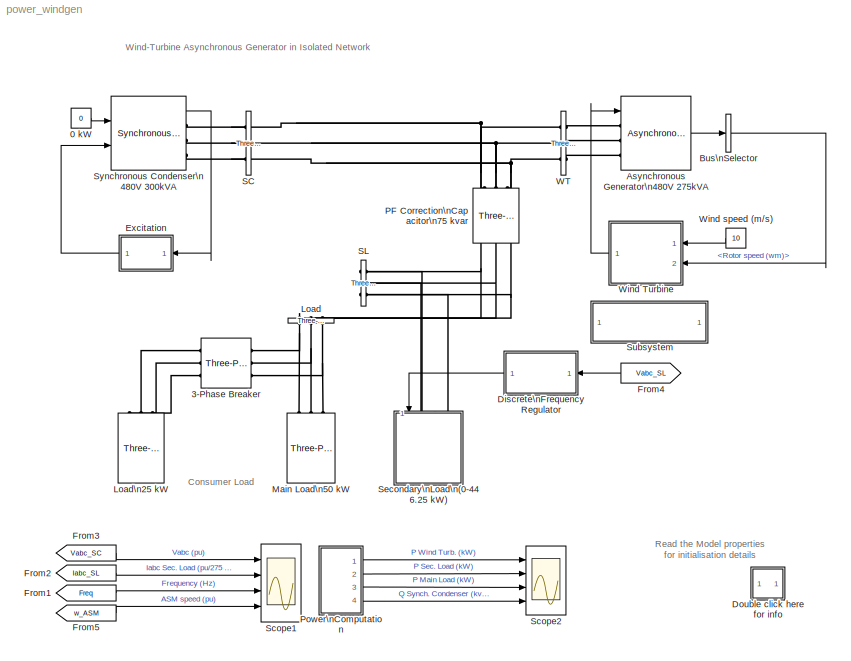
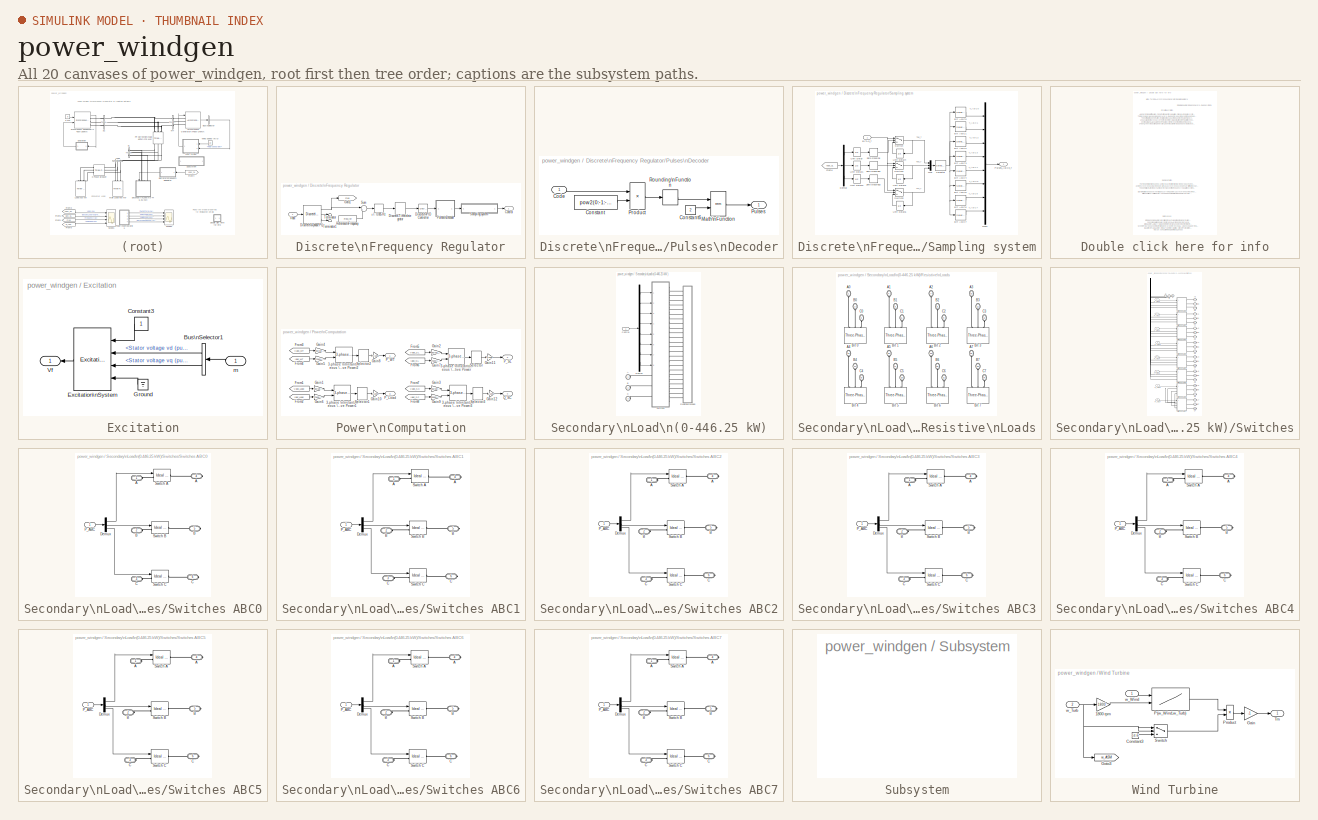
[diagram: thumbnail index - all 20 canvases of the model, root first then tree order]
MODEL power_windgen
KIND model
CONFIG InitFcn = load power_windgen_init
BLOCK [Constant] 0 kW
  Value = 0
BLOCK [Reference] 3-Phase Breaker  REF=powerlib/Elements/Three-Phase Breaker
  AttributesFormatString = \\n
  BreakerResistance = 0.001
  External = off
  InitialState = open
  Measurements = None
  Ports = [0, 0, 0, 0, 0, 3, 3]
  ShowPortLabels = on
  SnubberCapacitance = inf
  SnubberResistance = 1e6
  SourceBlock = powerlib/Elements/Three-Phase Breaker
  SourceType = Three-Phase Breaker
  SwitchA = on
  SwitchB = on
  SwitchC = on
  SwitchTimes = [0.2]
BLOCK [Reference] Asynchronous Generator\n480V 275kVA  REF=powerlib/Machines/Asynchronous Machine\npu Units
  AttributesFormatString = \\n
  InitialConditions = [-8.89496e-048 0 0.280896 0.280896 0.280896 -89.7425 150.258 30.2575]
  Lm = 3.5
  LoadFlowParameters = 0
  Mechanical = [ 2,0,2 ]
  NominalParameters = [ 275e3, 480, 60 ]
  Ports = [1, 1, 0, 0, 0, 3]
  PresetModel = No
  ReferenceFrame = Rotor
  Rotor = [ 0.015,0.06]
  RotorType = Squirrel-cage
  ShowDetailedParameters = on
  ShowPortLabels = on
  SourceBlock = powerlib/Machines/Asynchronous Machine\npu Units
  SourceType = Asynchronous Machine
  Stator = [ 0.016,0.06]
  Units = 0
BLOCK [BusSelector] Bus\nSelector
  DialogController = Simulink.DDGSource_Bus
  OutputSignals = Mechanical.Rotor speed (wm)
  Ports = [1, 1]
BLOCK [SubSystem] Discrete\nFrequency Regulator
  MaskCallbackString = |||
  MaskDescription = Input : phase to ground voltages\n\nOutput : 24 logical signals for the control of the dump load
  MaskEnableString = on,on,on,on
  MaskIconFrame = on
  MaskIconOpaque = on
  MaskIconRotate = none
  MaskIconUnits = autoscale
  MaskInitialization = Vbase=Vpp_nom/sqrt(3);\nKp=gains_regulator(1);\nKd=gains_regulator(2);\n
  MaskPromptString = Reference frequency (Hz):|Regulator gains  [Kp Kd]:|Phase to phase voltage (Vrms):|Sample time (s):
  MaskStyleString = edit,edit,edit,edit
  MaskTabNameString = ,,,
  MaskToolTipString = on,on,on,on
  MaskTunableValueString = on,on,on,on
  MaskType = Discrete Frequency Regulator
  MaskValueString = 60|[255 30]|480|200e-6
  MaskVarAliasString = ,,,
  MaskVariables = Freq_ref=@1;gains_regulator=@2;Vpp_nom=@3;Ts=@4;
  MaskVisibilityString = on,on,on,on
  MinAlgLoopOccurrences = off
  Ports = [1, 1]
  RTWSystemCode = Auto
  TreatAsAtomicUnit = off
BLOCK [DeadZone] Discrete\nFrequency Regulator/+//- 0.005 Hz
  LowerValue = -0.005
  UpperValue = 0.005
BLOCK [Outport] Discrete\nFrequency Regulator/Control
  BusOutputAsStruct = off
  IconDisplay = Port number
BLOCK [DiscreteIntegrator] Discrete\nFrequency Regulator/Discrete-Time\nIntegrator
  ExternalReset = none
  ICPrevOutput = DiscIntNeverNeededParam
  ICPrevScaledInput = DiscIntNeverNeededParam
  InitialConditionSource = internal
  IntegratorMethod = Integration: Forward Euler
  LimitOutput = on
  LowerSaturationLimit = 0
  Ports = [1, 1]
  SampleTime = Ts
  UpperSaturationLimit = 1
BLOCK [Reference] Discrete\nFrequency Regulator/Discrete\n3-phase PLL  REF=powerlib_extras/Discrete \nControl Blocks/Discrete\n3-phase PLL
  Fmin = 45
  ParK = [60 1400]
  Par_Init = [0 Freq_ref]
  Ports = [1, 3]
  ShowPortLabels = on
  SourceBlock = powerlib_extras/Discrete \nControl Blocks/Discrete\n3-phase PLL
  SourceType = Discrete 3-phase PLL
  Ts = Ts
BLOCK [Reference] Discrete\nFrequency Regulator/Discrete\nPID Controller  REF=powerlib_extras/Discrete \nControl Blocks/Discrete\nPID Controller
  Init = 0
  Kd = Kd
  Ki = 0
  Kp = Kp
  Par_Limits = [255 0]
  Ports = [1, 1]
  ShowPortLabels = on
  SourceBlock = powerlib_extras/Discrete \nControl Blocks/Discrete\nPID Controller
  SourceType = Discrete PID Controller
  TcD = 0.5e-3
  Ts = Ts
BLOCK [Goto] Discrete\nFrequency Regulator/Goto1
  DialogController = Simulink.DDGSource
  GotoTag = Freq
  TagVisibility = global
BLOCK [SubSystem] Discrete\nFrequency Regulator/Pulses\nDecoder
  MaskDescription = Decode the scalar input 'Code' into a vector output 'Pulses' based on  the specified number of bits to decode.\n(Element 1 of vector output = least significant bit)\n
  MaskEnableString = on
  MaskIconFrame = on
  MaskIconOpaque = on
  MaskIconRotate = none
  MaskIconUnits = autoscale
  MaskPromptString = Number of bits to decode:
  MaskStyleString = edit
  MaskToolTipString = on
  MaskTunableValueString = on
  MaskType = Pulses Decoder
  MaskValueString = 8
  MaskVariables = n=@1;
  MaskVisibilityString = on
  MinAlgLoopOccurrences = off
  Ports = [1, 1]
  RTWSystemCode = Auto
  TreatAsAtomicUnit = off
BLOCK [Inport] Discrete\nFrequency Regulator/Pulses\nDecoder/Code
  IconDisplay = Port number
  LatchInput = off
  Port = 1
BLOCK [Constant] Discrete\nFrequency Regulator/Pulses\nDecoder/Constant
  Value = pow2(0:-1:-(n-1))
BLOCK [Constant] Discrete\nFrequency Regulator/Pulses\nDecoder/Constant6
  Value = 2
BLOCK [Math] Discrete\nFrequency Regulator/Pulses\nDecoder/Math\nFunction
  Operator = rem
  Ports = [2, 1]
BLOCK [Product] Discrete\nFrequency Regulator/Pulses\nDecoder/Product
  Ports = [2, 1]
  RndMeth = Floor
BLOCK [Outport] Discrete\nFrequency Regulator/Pulses\nDecoder/Pulses
  BusOutputAsStruct = off
  IconDisplay = Port number
BLOCK [Rounding] Discrete\nFrequency Regulator/Pulses\nDecoder/Rounding\nFunction
BLOCK [Constant] Discrete\nFrequency Regulator/Reference\nFrequency
  Value = Freq_ref
BLOCK [SubSystem] Discrete\nFrequency Regulator/Sampling system
  MinAlgLoopOccurrences = off
  Ports = [1, 1]
  RTWSystemCode = Auto
  TreatAsAtomicUnit = off
BLOCK [Selector] Discrete\nFrequency Regulator/Sampling system/ Bit ABC4
  Elements = [13 14 15]
  InputPortWidth = 24
  Ports = [1, 1]
BLOCK [Inport] Discrete\nFrequency Regulator/Sampling system/BITA0_7
  IconDisplay = Port number
  LatchInput = off
  Port = 1
BLOCK [Selector] Discrete\nFrequency Regulator/Sampling system/Bit ABC0
  Elements = [1 2 3]
  InputPortWidth = 24
  Ports = [1, 1]
BLOCK [Selector] Discrete\nFrequency Regulator/Sampling system/Bit ABC1
  Elements = [4 5 6]
  InputPortWidth = 24
  Ports = [1, 1]
BLOCK [Selector] Discrete\nFrequency Regulator/Sampling system/Bit ABC2
  Elements = [7 8 9]
  InputPortWidth = 24
  Ports = [1, 1]
BLOCK [Selector] Discrete\nFrequency Regulator/Sampling system/Bit ABC3
  Elements = [10 11 12]
  InputPortWidth = 24
  Ports = [1, 1]
BLOCK [Selector] Discrete\nFrequency Regulator/Sampling system/Bit ABC5
  Elements = [16 17 18]
  InputPortWidth = 24
  Ports = [1, 1]
BLOCK [Selector] Discrete\nFrequency Regulator/Sampling system/Bit ABC6
  Elements = [19 20 21]
  InputPortWidth = 24
  Ports = [1, 1]
BLOCK [Selector] Discrete\nFrequency Regulator/Sampling system/Bit ABC7
  Elements = [22 23 24]
  InputPortWidth = 24
  Ports = [1, 1]
BLOCK [Demux] Discrete\nFrequency Regulator/Sampling system/Demux
  Outputs = 3
  Ports = [1, 3]
BLOCK [From] Discrete\nFrequency Regulator/Sampling system/From4
  CloseFcn = tagdialog Close
  DialogController = Simulink.DDGSource
  GotoTag = Vabc_SL
BLOCK [Mux] Discrete\nFrequency Regulator/Sampling system/Mux
  DisplayOption = bar
  Inputs = 3
  Ports = [3, 1]
BLOCK [Mux] Discrete\nFrequency Regulator/Sampling system/Mux1
  DisplayOption = bar
  Inputs = 8
  Ports = [8, 1]
BLOCK [Outport] Discrete\nFrequency Regulator/Sampling system/Pulses_ABC0_7
  BusOutputAsStruct = off
  IconDisplay = Port number
BLOCK [Selector] Discrete\nFrequency Regulator/Sampling system/Selector
  Elements = [1 9 17 2 10 18 3 11 19 4 12 20 5 13 21 6 14 22 7 15 23 8 16 24]
  InputPortWidth = 24
  Ports = [1, 1]
BLOCK [Switch] Discrete\nFrequency Regulator/Sampling system/Switch
  Threshold = 0.5
BLOCK [Switch] Discrete\nFrequency Regulator/Sampling system/Switch1
  Threshold = 0.5
BLOCK [Switch] Discrete\nFrequency Regulator/Sampling system/Switch2
  Threshold = 0.5
BLOCK [UnitDelay] Discrete\nFrequency Regulator/Sampling system/Unit Delay
  SampleTime = Ts
BLOCK [UnitDelay] Discrete\nFrequency Regulator/Sampling system/Unit Delay1
  SampleTime = Ts
BLOCK [UnitDelay] Discrete\nFrequency Regulator/Sampling system/Unit Delay2
  SampleTime = Ts
BLOCK [UnitDelay] Discrete\nFrequency Regulator/Sampling system/Unit Delay4
  SampleTime = Ts
BLOCK [UnitDelay] Discrete\nFrequency Regulator/Sampling system/Unit Delay5
  SampleTime = Ts
BLOCK [UnitDelay] Discrete\nFrequency Regulator/Sampling system/Unit Delay6
  SampleTime = Ts
BLOCK [HitCross] Discrete\nFrequency Regulator/Sampling system/Zero crossing
  HitCrossingDirection = either
  Ports = [1, 1]
BLOCK [HitCross] Discrete\nFrequency Regulator/Sampling system/Zero crossing1
  HitCrossingDirection = either
  Ports = [1, 1]
BLOCK [HitCross] Discrete\nFrequency Regulator/Sampling system/Zero crossing2
  HitCrossingDirection = either
  Ports = [1, 1]
BLOCK [Sum] Discrete\nFrequency Regulator/Sum
  IconShape = round
  Inputs = |+-
  Ports = [2, 1]
BLOCK [Terminator] Discrete\nFrequency Regulator/Terminator
BLOCK [Terminator] Discrete\nFrequency Regulator/Terminator1
BLOCK [Inport] Discrete\nFrequency Regulator/Vabc
  IconDisplay = Port number
  LatchInput = off
  Port = 1
BLOCK [SubSystem] Double click here for info
  MaskDisplay = disp('?')
  MaskIconFrame = on
  MaskIconOpaque = on
  MaskIconRotate = none
  MaskIconUnits = autoscale
  MinAlgLoopOccurrences = off
  Ports = []
  RTWSystemCode = Auto
  TreatAsAtomicUnit = off
BLOCK [SubSystem] Excitation
  MinAlgLoopOccurrences = off
  Ports = [1, 1]
  RTWSystemCode = Auto
  TreatAsAtomicUnit = off
BLOCK [BusSelector] Excitation/Bus\nSelector1
  DialogController = Simulink.DDGSource_Bus
  OutputSignals = dq0 components.Stator voltage  vd (pu),dq0 components.Stator voltage  vq (pu)
  Ports = [1, 2]
BLOCK [Constant] Excitation/Constant3
BLOCK [Reference] Excitation/Excitation\nSystem  REF=powerlib/Machines/Excitation\nSystem
  Ports = [4, 1]
  ShowPortLabels = on
  SourceBlock = powerlib/Machines/Excitation\nSystem
  SourceType = Excitation System
  damp = [ 0.001, 0.1 ]
  exc = [ 1, 0 ]
  lim = [ -11.5, 11.5, 0 ]
  reg = [ 300, 0.001 ]
  sat = [ 0, 0 ]
  tgr = [ 0, 0 ]
  tr = 20e-3
  v0 = [1,2.71455]
BLOCK [Ground] Excitation/Ground
BLOCK [Outport] Excitation/Vf
  BusOutputAsStruct = off
  IconDisplay = Port number
BLOCK [Inport] Excitation/m
  IconDisplay = Port number
  LatchInput = off
  Port = 1
BLOCK [From] From1
  CloseFcn = tagdialog Close
  DialogController = Simulink.DDGSource
  GotoTag = Freq
BLOCK [From] From2
  CloseFcn = tagdialog Close
  DialogController = Simulink.DDGSource
  GotoTag = Iabc_SL
BLOCK [From] From3
  CloseFcn = tagdialog Close
  DialogController = Simulink.DDGSource
  GotoTag = Vabc_SC
BLOCK [From] From4
  CloseFcn = tagdialog Close
  DialogController = Simulink.DDGSource
  GotoTag = Vabc_SL
BLOCK [From] From5
  CloseFcn = tagdialog Close
  DialogController = Simulink.DDGSource
  GotoTag = w_ASM
BLOCK [Reference] Load  REF=powerlib/Measurements/Three-Phase\nV-I Measurement
  CurrentMeasurement = yes
  Ipu = on
  LabelI = Iabc_Load
  LabelV = Vabc_Load
  OutputType = Magnitude
  PSBequivalent = 0
  Pbase = 275e3
  PhasorSimulation = off
  Ports = [0, 0, 0, 0, 0, 3, 3]
  SetLabelI = on
  SetLabelV = on
  ShowPortLabels = on
  SourceBlock = powerlib/Measurements/Three-Phase\nV-I Measurement
  SourceType = Three-Phase VI Measurement
  Vbase = 480
  VoltageMeasurement = phase-to-ground
  Vpu = on
BLOCK [Reference] Load\n25 kW  REF=powerlib/Elements/Three-Phase\nParallel RLC Load
  ActivePower = 25e3
  AttributesFormatString = \\n
  CapacitivePower = 0
  Configuration = Y (grounded)
  InductivePower = 0
  LConnTagsString = A|B|C
  LeftPortType = p1
  Measurements = None
  NominalFrequency = 60
  NominalVoltage = 480
  PhysicalDomain = powersysdomain
  Ports = [0, 0, 0, 0, 0, 3]
  RightPortType = p1
  SourceBlock = powerlib/Elements/Three-Phase\nParallel RLC Load
  SourceType = Three-Phase Parallel RLC Load
  SubClassName = unknown
BLOCK [Reference] Main Load\n50 kW  REF=powerlib/Elements/Three-Phase\nParallel RLC Load
  ActivePower = 50e3
  AttributesFormatString = \\n
  CapacitivePower = 0
  Configuration = Y (grounded)
  InductivePower = 0
  LConnTagsString = A|B|C
  LeftPortType = p1
  Measurements = None
  NominalFrequency = 60
  NominalVoltage = 480
  PhysicalDomain = powersysdomain
  Ports = [0, 0, 0, 0, 0, 3]
  RightPortType = p1
  SourceBlock = powerlib/Elements/Three-Phase\nParallel RLC Load
  SourceType = Three-Phase Parallel RLC Load
  SubClassName = unknown
BLOCK [Reference] PF Correction\nCapacitor\n75 kvar  REF=powerlib/Elements/Three-Phase\nParallel RLC Load
  ActivePower = 0
  AttributesFormatString = \\n
  CapacitivePower = 75e3
  Configuration = Delta
  InductivePower = 0
  LConnTagsString = A|B|C
  LeftPortType = p1
  Measurements = None
  NominalFrequency = 60
  NominalVoltage = 480
  PhysicalDomain = powersysdomain
  Ports = [0, 0, 0, 0, 0, 3]
  RightPortType = p1
  SourceBlock = powerlib/Elements/Three-Phase\nParallel RLC Load
  SourceType = Three-Phase Parallel RLC Load
  SubClassName = unknown
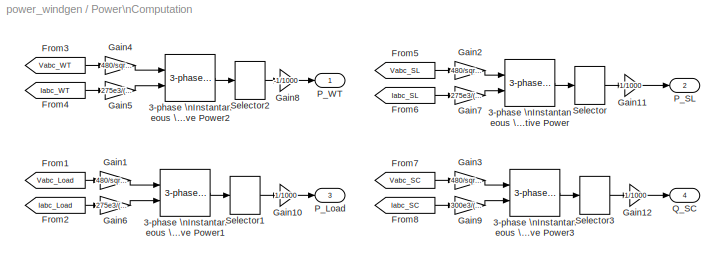
BLOCK [SubSystem] Power\nComputation
  MinAlgLoopOccurrences = off
  Ports = [0, 4]
  RTWSystemCode = Auto
  TreatAsAtomicUnit = off
BLOCK [Reference] Power\nComputation/3-phase \nInstantaneous \nActive & Reactive Power  REF=powerlib_extras/Measurements/3-phase \nInstantaneous \nActive & Reactive Power
  Ports = [2, 1]
  ShowPortLabels = on
  SourceBlock = powerlib_extras/Measurements/3-phase \nInstantaneous \nActive & Reactive Power
  SourceType = 3-phase instantaneous active and reactive power
BLOCK [Reference] Power\nComputation/3-phase \nInstantaneous \nActive & Reactive Power1  REF=powerlib_extras/Measurements/3-phase \nInstantaneous \nActive & Reactive Power
  Ports = [2, 1]
  ShowPortLabels = on
  SourceBlock = powerlib_extras/Measurements/3-phase \nInstantaneous \nActive & Reactive Power
  SourceType = 3-phase instantaneous active and reactive power
BLOCK [Reference] Power\nComputation/3-phase \nInstantaneous \nActive & Reactive Power2  REF=powerlib_extras/Measurements/3-phase \nInstantaneous \nActive & Reactive Power
  Ports = [2, 1]
  ShowPortLabels = on
  SourceBlock = powerlib_extras/Measurements/3-phase \nInstantaneous \nActive & Reactive Power
  SourceType = 3-phase instantaneous active and reactive power
BLOCK [Reference] Power\nComputation/3-phase \nInstantaneous \nActive & Reactive Power3  REF=powerlib_extras/Measurements/3-phase \nInstantaneous \nActive & Reactive Power
  Ports = [2, 1]
  ShowPortLabels = on
  SourceBlock = powerlib_extras/Measurements/3-phase \nInstantaneous \nActive & Reactive Power
  SourceType = 3-phase instantaneous active and reactive power
BLOCK [From] Power\nComputation/From1
  CloseFcn = tagdialog Close
  DialogController = Simulink.DDGSource
  GotoTag = Vabc_Load
BLOCK [From] Power\nComputation/From2
  CloseFcn = tagdialog Close
  DialogController = Simulink.DDGSource
  GotoTag = Iabc_Load
BLOCK [From] Power\nComputation/From3
  CloseFcn = tagdialog Close
  DialogController = Simulink.DDGSource
  GotoTag = Vabc_WT
BLOCK [From] Power\nComputation/From4
  CloseFcn = tagdialog Close
  DialogController = Simulink.DDGSource
  GotoTag = Iabc_WT
BLOCK [From] Power\nComputation/From5
  CloseFcn = tagdialog Close
  DialogController = Simulink.DDGSource
  GotoTag = Vabc_SL
BLOCK [From] Power\nComputation/From6
  CloseFcn = tagdialog Close
  DialogController = Simulink.DDGSource
  GotoTag = Iabc_SL
BLOCK [From] Power\nComputation/From7
  CloseFcn = tagdialog Close
  DialogController = Simulink.DDGSource
  GotoTag = Vabc_SC
BLOCK [From] Power\nComputation/From8
  CloseFcn = tagdialog Close
  DialogController = Simulink.DDGSource
  GotoTag = Iabc_SC
BLOCK [Gain] Power\nComputation/Gain1
  Gain = 480/sqrt(3)*sqrt(2)
BLOCK [Gain] Power\nComputation/Gain10
  Gain = 1/1000
BLOCK [Gain] Power\nComputation/Gain11
  Gain = 1/1000
BLOCK [Gain] Power\nComputation/Gain12
  Gain = 1/1000
BLOCK [Gain] Power\nComputation/Gain2
  Gain = 480/sqrt(3)*sqrt(2)
BLOCK [Gain] Power\nComputation/Gain3
  Gain = 480/sqrt(3)*sqrt(2)
BLOCK [Gain] Power\nComputation/Gain4
  Gain = 480/sqrt(3)*sqrt(2)
BLOCK [Gain] Power\nComputation/Gain5
  Gain = 275e3/(sqrt(3)*480)*sqrt(2)
BLOCK [Gain] Power\nComputation/Gain6
  Gain = 275e3/(sqrt(3)*480)*sqrt(2)
BLOCK [Gain] Power\nComputation/Gain7
  Gain = 275e3/(sqrt(3)*480)*sqrt(2)
BLOCK [Gain] Power\nComputation/Gain8
  Gain = -1/1000
BLOCK [Gain] Power\nComputation/Gain9
  Gain = 300e3/(sqrt(3)*480)*sqrt(2)
BLOCK [Outport] Power\nComputation/P_Load
  BusOutputAsStruct = off
  IconDisplay = Port number
  Port = 3
BLOCK [Outport] Power\nComputation/P_SL
  BusOutputAsStruct = off
  IconDisplay = Port number
  Port = 2
BLOCK [Outport] Power\nComputation/P_WT
  BusOutputAsStruct = off
  IconDisplay = Port number
BLOCK [Outport] Power\nComputation/Q_SC
  BusOutputAsStruct = off
  IconDisplay = Port number
  Port = 4
BLOCK [Selector] Power\nComputation/Selector
  Elements = [1]
  InputPortWidth = 2
  Ports = [1, 1]
BLOCK [Selector] Power\nComputation/Selector1
  Elements = [1]
  InputPortWidth = 2
  Ports = [1, 1]
BLOCK [Selector] Power\nComputation/Selector2
  Elements = [1]
  InputPortWidth = 2
  Ports = [1, 1]
BLOCK [Selector] Power\nComputation/Selector3
  Elements = [2]
  InputPortWidth = 2
  Ports = [1, 1]
BLOCK [Reference] SC  REF=powerlib/Measurements/Three-Phase\nV-I Measurement
  CurrentMeasurement = yes
  Ipu = on
  LabelI = Iabc_SC
  LabelV = Vabc_SC
  OutputType = Magnitude
  PSBequivalent = 0
  Pbase = 300e3
  PhasorSimulation = off
  Ports = [0, 0, 0, 0, 0, 3, 3]
  SetLabelI = on
  SetLabelV = on
  ShowPortLabels = on
  SourceBlock = powerlib/Measurements/Three-Phase\nV-I Measurement
  SourceType = Three-Phase VI Measurement
  Vbase = 480
  VoltageMeasurement = phase-to-ground
  Vpu = on
BLOCK [Reference] SL  REF=powerlib/Measurements/Three-Phase\nV-I Measurement
  CurrentMeasurement = yes
  Ipu = on
  LabelI = Iabc_SL
  LabelV = Vabc_SL
  OutputType = Magnitude
  PSBequivalent = 0
  Pbase = 275e3
  PhasorSimulation = off
  Ports = [0, 0, 0, 0, 0, 3, 3]
  SetLabelI = on
  SetLabelV = on
  ShowPortLabels = on
  SourceBlock = powerlib/Measurements/Three-Phase\nV-I Measurement
  SourceType = Three-Phase VI Measurement
  Vbase = 480
  VoltageMeasurement = phase-to-ground
  Vpu = on
BLOCK [Scope] Scope1
  DataFormat = StructureWithTime
  LimitDataPoints = off
  NumInputPorts = 4
  Ports = [4]
  SaveName = Vabc
  TimeRange = 5
  YMax = 1.25~0.75~60.1~1.013
  YMin = -1.25~-0.75~59.8~1.008
  ZoomMode = xonly
BLOCK [Scope] Scope2
  DataFormat = Array
  LimitDataPoints = off
  NumInputPorts = 4
  Ports = [4]
  SaveName = Power
  TimeRange = 5
  YMax = 240~160~80~30
  YMin = 180~100~50~18
  ZoomMode = yonly
BLOCK [SubSystem] Secondary\nLoad\n(0-446.25 kW)
  MaskCallbackString = |||
  MaskDescription = This block implements a variable, three-phase resistive load. The load variation uses an eight-bit binary progression so that the load power can be varied by steps from 0 to 255*Pstep.\n\nThe eight three-phase resistors are connected in series with ideal switches simulating forced-commutated power electronic switches.\n\nThe Pulses input is a vector containing the eight bits (0/1) controlling the ...<+68ch>
  MaskEnableString = on,on,on,on
  MaskIconFrame = on
  MaskIconOpaque = on
  MaskIconRotate = none
  MaskIconUnits = autoscale
  MaskInitialization = Ron_switch=1e-6;\nRs_snubber=inf;\nCs_snubber=0;\nn_niveaux=8;\nPmax=((2^n_niveaux)-1)*P_lissage_min;\nPin_normalise=min([(Pin_3phase/Pmax)*((2^n_niveaux)-1) ((2^n_niveaux)-1)]);\ndiscret1=pow2(0:-1:-(n_niveaux-1))*Pin_normalise;\ndiscret2=floor(discret1);\nStatus=rem(discret2,2);
  MaskPromptString = Nominal L-L voltage (Vrms):|Nominal frequency (Hz):|Power per step Pstep (W):|Initial power  (W) :
  MaskStyleString = edit,edit,edit,edit
  MaskTabNameString = ,,,
  MaskToolTipString = on,on,on,on
  MaskTunableValueString = on,on,on,on
  MaskType = 8-step Variable Load
  MaskValueString = 480|60|1.75e3|50e3
  MaskVarAliasString = ,,,
  MaskVariables = Vphase_phase_lissage=@1;Freq=@2;P_lissage_min=@3;Pin_3phase=@4;
  MaskVisibilityString = on,on,on,on
  MinAlgLoopOccurrences = off
  Ports = [1, 0, 0, 0, 0, 3]
  RTWSystemCode = Auto
  TreatAsAtomicUnit = off
BLOCK [PMIOPort] Secondary\nLoad\n(0-446.25 kW)/A
  Port = 1
  Side = Left
BLOCK [PMIOPort] Secondary\nLoad\n(0-446.25 kW)/B
  Port = 2
  Side = Left
BLOCK [PMIOPort] Secondary\nLoad\n(0-446.25 kW)/C
  Port = 3
  Side = Left
BLOCK [Inport] Secondary\nLoad\n(0-446.25 kW)/Control
  IconDisplay = Port number
  LatchInput = off
  Port = 1
BLOCK [Demux] Secondary\nLoad\n(0-446.25 kW)/Demux
  Outputs = 8
  Ports = [1, 8]
BLOCK [SubSystem] Secondary\nLoad\n(0-446.25 kW)/Resistive\nLoads
  MinAlgLoopOccurrences = off
  Ports = [0, 0, 0, 0, 0, 24]
  RTWSystemCode = Auto
  TreatAsAtomicUnit = off
BLOCK [PMIOPort] Secondary\nLoad\n(0-446.25 kW)/Resistive\nLoads/A0
  Port = 1
  Side = Left
BLOCK [PMIOPort] Secondary\nLoad\n(0-446.25 kW)/Resistive\nLoads/A1
  Port = 4
  Side = Left
BLOCK [PMIOPort] Secondary\nLoad\n(0-446.25 kW)/Resistive\nLoads/A2
  Port = 7
  Side = Left
BLOCK [PMIOPort] Secondary\nLoad\n(0-446.25 kW)/Resistive\nLoads/A3
  Port = 10
  Side = Left
BLOCK [PMIOPort] Secondary\nLoad\n(0-446.25 kW)/Resistive\nLoads/A4
  Port = 13
  Side = Left
BLOCK [PMIOPort] Secondary\nLoad\n(0-446.25 kW)/Resistive\nLoads/A5
  Port = 16
  Side = Left
BLOCK [PMIOPort] Secondary\nLoad\n(0-446.25 kW)/Resistive\nLoads/A6
  Port = 19
  Side = Left
BLOCK [PMIOPort] Secondary\nLoad\n(0-446.25 kW)/Resistive\nLoads/A7
  Port = 22
  Side = Left
BLOCK [PMIOPort] Secondary\nLoad\n(0-446.25 kW)/Resistive\nLoads/B0
  Port = 2
  Side = Left
BLOCK [PMIOPort] Secondary\nLoad\n(0-446.25 kW)/Resistive\nLoads/B1
  Port = 5
  Side = Left
BLOCK [PMIOPort] Secondary\nLoad\n(0-446.25 kW)/Resistive\nLoads/B2
  Port = 8
  Side = Left
BLOCK [PMIOPort] Secondary\nLoad\n(0-446.25 kW)/Resistive\nLoads/B3
  Port = 11
  Side = Left
BLOCK [PMIOPort] Secondary\nLoad\n(0-446.25 kW)/Resistive\nLoads/B4
  Port = 14
  Side = Left
BLOCK [PMIOPort] Secondary\nLoad\n(0-446.25 kW)/Resistive\nLoads/B5
  Port = 17
  Side = Left
BLOCK [PMIOPort] Secondary\nLoad\n(0-446.25 kW)/Resistive\nLoads/B6
  Port = 20
  Side = Left
BLOCK [PMIOPort] Secondary\nLoad\n(0-446.25 kW)/Resistive\nLoads/B7
  Port = 23
  Side = Left
BLOCK [Reference] Secondary\nLoad\n(0-446.25 kW)/Resistive\nLoads/Bit 0  REF=powerlib/Elements/Three-Phase\nParallel RLC Load
  ActivePower = P_lissage_min
  AttributesFormatString = \\n
  CapacitivePower = 0
  Configuration = Y (grounded)
  InductivePower = 0
  LConnTagsString = A|B|C
  LeftPortType = p1
  Measurements = None
  NominalFrequency = Freq
  NominalVoltage = Vphase_phase_lissage
  PhysicalDomain = powersysdomain
  Ports = [0, 0, 0, 0, 0, 3]
  RightPortType = p1
  SourceBlock = powerlib/Elements/Three-Phase\nParallel RLC Load
  SourceType = Three-Phase Parallel RLC Load
  SubClassName = unknown
BLOCK [Reference] Secondary\nLoad\n(0-446.25 kW)/Resistive\nLoads/Bit 1  REF=powerlib/Elements/Three-Phase\nParallel RLC Load
  ActivePower = 2*P_lissage_min
  AttributesFormatString = \\n
  CapacitivePower = 0
  Configuration = Y (grounded)
  InductivePower = 0
  LConnTagsString = A|B|C
  LeftPortType = p1
  Measurements = None
  NominalFrequency = Freq
  NominalVoltage = Vphase_phase_lissage
  PhysicalDomain = powersysdomain
  Ports = [0, 0, 0, 0, 0, 3]
  RightPortType = p1
  SourceBlock = powerlib/Elements/Three-Phase\nParallel RLC Load
  SourceType = Three-Phase Parallel RLC Load
  SubClassName = unknown
BLOCK [Reference] Secondary\nLoad\n(0-446.25 kW)/Resistive\nLoads/Bit 2  REF=powerlib/Elements/Three-Phase\nParallel RLC Load
  ActivePower = 2^2*P_lissage_min
  AttributesFormatString = \\n
  CapacitivePower = 0
  Configuration = Y (grounded)
  InductivePower = 0
  LConnTagsString = A|B|C
  LeftPortType = p1
  Measurements = None
  NominalFrequency = Freq
  NominalVoltage = Vphase_phase_lissage
  PhysicalDomain = powersysdomain
  Ports = [0, 0, 0, 0, 0, 3]
  RightPortType = p1
  SourceBlock = powerlib/Elements/Three-Phase\nParallel RLC Load
  SourceType = Three-Phase Parallel RLC Load
  SubClassName = unknown
BLOCK [Reference] Secondary\nLoad\n(0-446.25 kW)/Resistive\nLoads/Bit 3  REF=powerlib/Elements/Three-Phase\nParallel RLC Load
  ActivePower = 2^3*P_lissage_min
  AttributesFormatString = \\n
  CapacitivePower = 0
  Configuration = Y (grounded)
  InductivePower = 0
  LConnTagsString = A|B|C
  LeftPortType = p1
  Measurements = None
  NominalFrequency = Freq
  NominalVoltage = Vphase_phase_lissage
  PhysicalDomain = powersysdomain
  Ports = [0, 0, 0, 0, 0, 3]
  RightPortType = p1
  SourceBlock = powerlib/Elements/Three-Phase\nParallel RLC Load
  SourceType = Three-Phase Parallel RLC Load
  SubClassName = unknown
BLOCK [Reference] Secondary\nLoad\n(0-446.25 kW)/Resistive\nLoads/Bit 4  REF=powerlib/Elements/Three-Phase\nParallel RLC Load
  ActivePower = 2^4*P_lissage_min
  AttributesFormatString = \\n
  CapacitivePower = 0
  Configuration = Y (grounded)
  InductivePower = 0
  LConnTagsString = A|B|C
  LeftPortType = p1
  Measurements = None
  NominalFrequency = Freq
  NominalVoltage = Vphase_phase_lissage
  PhysicalDomain = powersysdomain
  Ports = [0, 0, 0, 0, 0, 3]
  RightPortType = p1
  SourceBlock = powerlib/Elements/Three-Phase\nParallel RLC Load
  SourceType = Three-Phase Parallel RLC Load
  SubClassName = unknown
BLOCK [Reference] Secondary\nLoad\n(0-446.25 kW)/Resistive\nLoads/Bit 5  REF=powerlib/Elements/Three-Phase\nParallel RLC Load
  ActivePower = 2^5*P_lissage_min
  AttributesFormatString = \\n
  CapacitivePower = 0
  Configuration = Y (grounded)
  InductivePower = 0
  LConnTagsString = A|B|C
  LeftPortType = p1
  Measurements = None
  NominalFrequency = Freq
  NominalVoltage = Vphase_phase_lissage
  PhysicalDomain = powersysdomain
  Ports = [0, 0, 0, 0, 0, 3]
  RightPortType = p1
  SourceBlock = powerlib/Elements/Three-Phase\nParallel RLC Load
  SourceType = Three-Phase Parallel RLC Load
  SubClassName = unknown
BLOCK [Reference] Secondary\nLoad\n(0-446.25 kW)/Resistive\nLoads/Bit 6  REF=powerlib/Elements/Three-Phase\nParallel RLC Load
  ActivePower = 2^6*P_lissage_min
  AttributesFormatString = \\n
  CapacitivePower = 0
  Configuration = Y (grounded)
  InductivePower = 0
  LConnTagsString = A|B|C
  LeftPortType = p1
  Measurements = None
  NominalFrequency = Freq
  NominalVoltage = Vphase_phase_lissage
  PhysicalDomain = powersysdomain
  Ports = [0, 0, 0, 0, 0, 3]
  RightPortType = p1
  SourceBlock = powerlib/Elements/Three-Phase\nParallel RLC Load
  SourceType = Three-Phase Parallel RLC Load
  SubClassName = unknown
BLOCK [Reference] Secondary\nLoad\n(0-446.25 kW)/Resistive\nLoads/Bit 7  REF=powerlib/Elements/Three-Phase\nParallel RLC Load
  ActivePower = 2^7*P_lissage_min
  AttributesFormatString = \\n
  CapacitivePower = 0
  Configuration = Y (grounded)
  InductivePower = 0
  LConnTagsString = A|B|C
  LeftPortType = p1
  Measurements = None
  NominalFrequency = Freq
  NominalVoltage = Vphase_phase_lissage
  PhysicalDomain = powersysdomain
  Ports = [0, 0, 0, 0, 0, 3]
  RightPortType = p1
  SourceBlock = powerlib/Elements/Three-Phase\nParallel RLC Load
  SourceType = Three-Phase Parallel RLC Load
  SubClassName = unknown
BLOCK [PMIOPort] Secondary\nLoad\n(0-446.25 kW)/Resistive\nLoads/C0
  Port = 3
  Side = Left
BLOCK [PMIOPort] Secondary\nLoad\n(0-446.25 kW)/Resistive\nLoads/C1
  Port = 6
  Side = Left
BLOCK [PMIOPort] Secondary\nLoad\n(0-446.25 kW)/Resistive\nLoads/C2
  Port = 9
  Side = Left
BLOCK [PMIOPort] Secondary\nLoad\n(0-446.25 kW)/Resistive\nLoads/C3
  Port = 12
  Side = Left
BLOCK [PMIOPort] Secondary\nLoad\n(0-446.25 kW)/Resistive\nLoads/C4
  Port = 15
  Side = Left
BLOCK [PMIOPort] Secondary\nLoad\n(0-446.25 kW)/Resistive\nLoads/C5
  Port = 18
  Side = Left
BLOCK [PMIOPort] Secondary\nLoad\n(0-446.25 kW)/Resistive\nLoads/C6
  Port = 21
  Side = Left
BLOCK [PMIOPort] Secondary\nLoad\n(0-446.25 kW)/Resistive\nLoads/C7
  Port = 24
  Side = Left
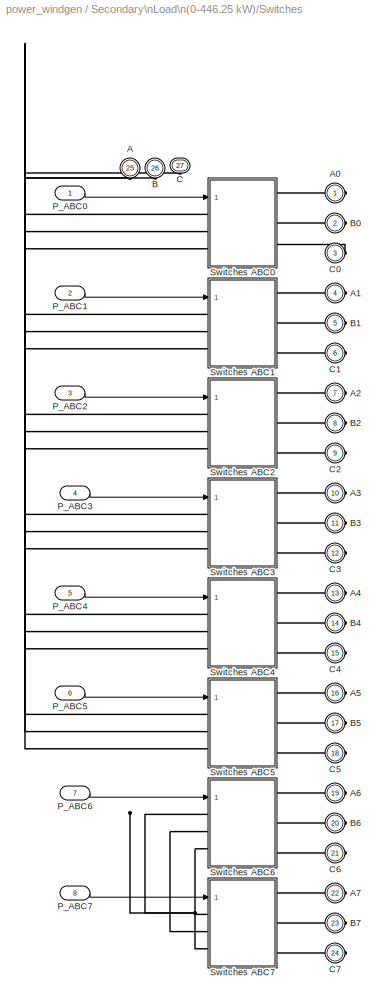
BLOCK [SubSystem] Secondary\nLoad\n(0-446.25 kW)/Switches
  MinAlgLoopOccurrences = off
  Ports = [8, 0, 0, 0, 0, 3, 24]
  RTWSystemCode = Auto
  TreatAsAtomicUnit = off
BLOCK [PMIOPort] Secondary\nLoad\n(0-446.25 kW)/Switches/A
  Port = 25
  Side = Left
BLOCK [PMIOPort] Secondary\nLoad\n(0-446.25 kW)/Switches/A0
  Port = 1
  Side = Right
BLOCK [PMIOPort] Secondary\nLoad\n(0-446.25 kW)/Switches/A1
  Port = 4
  Side = Right
BLOCK [PMIOPort] Secondary\nLoad\n(0-446.25 kW)/Switches/A2
  Port = 7
  Side = Right
BLOCK [PMIOPort] Secondary\nLoad\n(0-446.25 kW)/Switches/A3
  Port = 10
  Side = Right
BLOCK [PMIOPort] Secondary\nLoad\n(0-446.25 kW)/Switches/A4
  Port = 13
  Side = Right
BLOCK [PMIOPort] Secondary\nLoad\n(0-446.25 kW)/Switches/A5
  Port = 16
  Side = Right
BLOCK [PMIOPort] Secondary\nLoad\n(0-446.25 kW)/Switches/A6
  Port = 19
  Side = Right
BLOCK [PMIOPort] Secondary\nLoad\n(0-446.25 kW)/Switches/A7
  Port = 22
  Side = Right
BLOCK [PMIOPort] Secondary\nLoad\n(0-446.25 kW)/Switches/B
  Port = 26
  Side = Left
BLOCK [PMIOPort] Secondary\nLoad\n(0-446.25 kW)/Switches/B0
  Port = 2
  Side = Right
BLOCK [PMIOPort] Secondary\nLoad\n(0-446.25 kW)/Switches/B1
  Port = 5
  Side = Right
BLOCK [PMIOPort] Secondary\nLoad\n(0-446.25 kW)/Switches/B2
  Port = 8
  Side = Right
BLOCK [PMIOPort] Secondary\nLoad\n(0-446.25 kW)/Switches/B3
  Port = 11
  Side = Right
BLOCK [PMIOPort] Secondary\nLoad\n(0-446.25 kW)/Switches/B4
  Port = 14
  Side = Right
BLOCK [PMIOPort] Secondary\nLoad\n(0-446.25 kW)/Switches/B5
  Port = 17
  Side = Right
BLOCK [PMIOPort] Secondary\nLoad\n(0-446.25 kW)/Switches/B6
  Port = 20
  Side = Right
BLOCK [PMIOPort] Secondary\nLoad\n(0-446.25 kW)/Switches/B7
  Port = 23
  Side = Right
BLOCK [PMIOPort] Secondary\nLoad\n(0-446.25 kW)/Switches/C
  Port = 27
  Side = Left
BLOCK [PMIOPort] Secondary\nLoad\n(0-446.25 kW)/Switches/C0
  Port = 3
  Side = Right
BLOCK [PMIOPort] Secondary\nLoad\n(0-446.25 kW)/Switches/C1
  Port = 6
  Side = Right
BLOCK [PMIOPort] Secondary\nLoad\n(0-446.25 kW)/Switches/C2
  Port = 9
  Side = Right
BLOCK [PMIOPort] Secondary\nLoad\n(0-446.25 kW)/Switches/C3
  Port = 12
  Side = Right
BLOCK [PMIOPort] Secondary\nLoad\n(0-446.25 kW)/Switches/C4
  Port = 15
  Side = Right
BLOCK [PMIOPort] Secondary\nLoad\n(0-446.25 kW)/Switches/C5
  Port = 18
  Side = Right
BLOCK [PMIOPort] Secondary\nLoad\n(0-446.25 kW)/Switches/C6
  Port = 21
  Side = Right
BLOCK [PMIOPort] Secondary\nLoad\n(0-446.25 kW)/Switches/C7
  Port = 24
  Side = Right
BLOCK [Inport] Secondary\nLoad\n(0-446.25 kW)/Switches/P_ABC0
  IconDisplay = Port number
  LatchInput = off
  Port = 1
BLOCK [Inport] Secondary\nLoad\n(0-446.25 kW)/Switches/P_ABC1
  IconDisplay = Port number
  LatchInput = off
  Port = 2
BLOCK [Inport] Secondary\nLoad\n(0-446.25 kW)/Switches/P_ABC2
  IconDisplay = Port number
  LatchInput = off
  Port = 3
BLOCK [Inport] Secondary\nLoad\n(0-446.25 kW)/Switches/P_ABC3
  IconDisplay = Port number
  LatchInput = off
  Port = 4
BLOCK [Inport] Secondary\nLoad\n(0-446.25 kW)/Switches/P_ABC4
  IconDisplay = Port number
  LatchInput = off
  Port = 5
BLOCK [Inport] Secondary\nLoad\n(0-446.25 kW)/Switches/P_ABC5
  IconDisplay = Port number
  LatchInput = off
  Port = 6
BLOCK [Inport] Secondary\nLoad\n(0-446.25 kW)/Switches/P_ABC6
  IconDisplay = Port number
  LatchInput = off
  Port = 7
BLOCK [Inport] Secondary\nLoad\n(0-446.25 kW)/Switches/P_ABC7
  IconDisplay = Port number
  LatchInput = off
  Port = 8
BLOCK [SubSystem] Secondary\nLoad\n(0-446.25 kW)/Switches/Switches ABC0
  MinAlgLoopOccurrences = off
  Ports = [1, 0, 0, 0, 0, 3, 3]
  RTWSystemCode = Auto
  TreatAsAtomicUnit = off
BLOCK [PMIOPort] Secondary\nLoad\n(0-446.25 kW)/Switches/Switches ABC0/A
  Port = 1
  Side = Left
BLOCK [PMIOPort] Secondary\nLoad\n(0-446.25 kW)/Switches/Switches ABC0/A 
  Port = 4
  Side = Right
BLOCK [PMIOPort] Secondary\nLoad\n(0-446.25 kW)/Switches/Switches ABC0/B
  Port = 2
  Side = Left
BLOCK [PMIOPort] Secondary\nLoad\n(0-446.25 kW)/Switches/Switches ABC0/B 
  Port = 5
  Side = Right
BLOCK [PMIOPort] Secondary\nLoad\n(0-446.25 kW)/Switches/Switches ABC0/C
  Port = 3
  Side = Left
BLOCK [PMIOPort] Secondary\nLoad\n(0-446.25 kW)/Switches/Switches ABC0/C 
  Port = 6
  Side = Right
BLOCK [Demux] Secondary\nLoad\n(0-446.25 kW)/Switches/Switches ABC0/Demux
  Outputs = 3
  Ports = [1, 3]
BLOCK [Inport] Secondary\nLoad\n(0-446.25 kW)/Switches/Switches ABC0/P_ABC
  IconDisplay = Port number
  LatchInput = off
  Port = 1
BLOCK [Reference] Secondary\nLoad\n(0-446.25 kW)/Switches/Switches ABC0/Switch A  REF=powerlib/Power\nElectronics/Ideal Switch
  AttributesFormatString = \\n
  Cs = Cs_snubber
  IC = Status(1)
  Lon = 0
  Measurements = off
  Ports = [1, 0, 0, 0, 0, 1, 1]
  Ron = Ron_switch
  Rs = Rs_snubber
  ShowPortLabels = on
  SourceBlock = powerlib/Power\nElectronics/Ideal Switch
  SourceType = Ideal Switch
BLOCK [Reference] Secondary\nLoad\n(0-446.25 kW)/Switches/Switches ABC0/Switch B  REF=powerlib/Power\nElectronics/Ideal Switch
  AttributesFormatString = \\n
  Cs = Cs_snubber
  IC = Status(1)
  Lon = 0
  Measurements = off
  Ports = [1, 0, 0, 0, 0, 1, 1]
  Ron = Ron_switch
  Rs = Rs_snubber
  ShowPortLabels = on
  SourceBlock = powerlib/Power\nElectronics/Ideal Switch
  SourceType = Ideal Switch
BLOCK [Reference] Secondary\nLoad\n(0-446.25 kW)/Switches/Switches ABC0/Switch C  REF=powerlib/Power\nElectronics/Ideal Switch
  AttributesFormatString = \\n
  Cs = Cs_snubber
  IC = Status(1)
  Lon = 0
  Measurements = off
  Ports = [1, 0, 0, 0, 0, 1, 1]
  Ron = Ron_switch
  Rs = Rs_snubber
  ShowPortLabels = on
  SourceBlock = powerlib/Power\nElectronics/Ideal Switch
  SourceType = Ideal Switch
BLOCK [SubSystem] Secondary\nLoad\n(0-446.25 kW)/Switches/Switches ABC1
  MinAlgLoopOccurrences = off
  Ports = [1, 0, 0, 0, 0, 3, 3]
  RTWSystemCode = Auto
  TreatAsAtomicUnit = off
BLOCK [PMIOPort] Secondary\nLoad\n(0-446.25 kW)/Switches/Switches ABC1/A
  Port = 1
  Side = Left
BLOCK [PMIOPort] Secondary\nLoad\n(0-446.25 kW)/Switches/Switches ABC1/A 
  Port = 4
  Side = Right
BLOCK [PMIOPort] Secondary\nLoad\n(0-446.25 kW)/Switches/Switches ABC1/B
  Port = 2
  Side = Left
BLOCK [PMIOPort] Secondary\nLoad\n(0-446.25 kW)/Switches/Switches ABC1/B 
  Port = 5
  Side = Right
BLOCK [PMIOPort] Secondary\nLoad\n(0-446.25 kW)/Switches/Switches ABC1/C
  Port = 3
  Side = Left
BLOCK [PMIOPort] Secondary\nLoad\n(0-446.25 kW)/Switches/Switches ABC1/C 
  Port = 6
  Side = Right
BLOCK [Demux] Secondary\nLoad\n(0-446.25 kW)/Switches/Switches ABC1/Demux
  Outputs = 3
  Ports = [1, 3]
BLOCK [Inport] Secondary\nLoad\n(0-446.25 kW)/Switches/Switches ABC1/P_ABC
  IconDisplay = Port number
  LatchInput = off
  Port = 1
BLOCK [Reference] Secondary\nLoad\n(0-446.25 kW)/Switches/Switches ABC1/Switch A  REF=powerlib/Power\nElectronics/Ideal Switch
  AttributesFormatString = \\n
  Cs = Cs_snubber
  IC = Status(2)
  Lon = 0
  Measurements = off
  Ports = [1, 0, 0, 0, 0, 1, 1]
  Ron = Ron_switch
  Rs = Rs_snubber
  ShowPortLabels = on
  SourceBlock = powerlib/Power\nElectronics/Ideal Switch
  SourceType = Ideal Switch
BLOCK [Reference] Secondary\nLoad\n(0-446.25 kW)/Switches/Switches ABC1/Switch B  REF=powerlib/Power\nElectronics/Ideal Switch
  AttributesFormatString = \\n
  Cs = Cs_snubber
  IC = Status(2)
  Lon = 0
  Measurements = off
  Ports = [1, 0, 0, 0, 0, 1, 1]
  Ron = Ron_switch
  Rs = Rs_snubber
  ShowPortLabels = on
  SourceBlock = powerlib/Power\nElectronics/Ideal Switch
  SourceType = Ideal Switch
BLOCK [Reference] Secondary\nLoad\n(0-446.25 kW)/Switches/Switches ABC1/Switch C  REF=powerlib/Power\nElectronics/Ideal Switch
  AttributesFormatString = \\n
  Cs = Cs_snubber
  IC = Status(2)
  Lon = 0
  Measurements = off
  Ports = [1, 0, 0, 0, 0, 1, 1]
  Ron = Ron_switch
  Rs = Rs_snubber
  ShowPortLabels = on
  SourceBlock = powerlib/Power\nElectronics/Ideal Switch
  SourceType = Ideal Switch
BLOCK [SubSystem] Secondary\nLoad\n(0-446.25 kW)/Switches/Switches ABC2
  MinAlgLoopOccurrences = off
  Ports = [1, 0, 0, 0, 0, 3, 3]
  RTWSystemCode = Auto
  TreatAsAtomicUnit = off
BLOCK [PMIOPort] Secondary\nLoad\n(0-446.25 kW)/Switches/Switches ABC2/A
  Port = 1
  Side = Left
BLOCK [PMIOPort] Secondary\nLoad\n(0-446.25 kW)/Switches/Switches ABC2/A 
  Port = 4
  Side = Right
BLOCK [PMIOPort] Secondary\nLoad\n(0-446.25 kW)/Switches/Switches ABC2/B
  Port = 2
  Side = Left
BLOCK [PMIOPort] Secondary\nLoad\n(0-446.25 kW)/Switches/Switches ABC2/B 
  Port = 5
  Side = Right
BLOCK [PMIOPort] Secondary\nLoad\n(0-446.25 kW)/Switches/Switches ABC2/C
  Port = 3
  Side = Left
BLOCK [PMIOPort] Secondary\nLoad\n(0-446.25 kW)/Switches/Switches ABC2/C 
  Port = 6
  Side = Right
BLOCK [Demux] Secondary\nLoad\n(0-446.25 kW)/Switches/Switches ABC2/Demux
  Outputs = 3
  Ports = [1, 3]
BLOCK [Inport] Secondary\nLoad\n(0-446.25 kW)/Switches/Switches ABC2/P_ABC
  IconDisplay = Port number
  LatchInput = off
  Port = 1
BLOCK [Reference] Secondary\nLoad\n(0-446.25 kW)/Switches/Switches ABC2/Switch A  REF=powerlib/Power\nElectronics/Ideal Switch
  AttributesFormatString = \\n
  Cs = Cs_snubber
  IC = Status(3)
  Lon = 0
  Measurements = off
  Ports = [1, 0, 0, 0, 0, 1, 1]
  Ron = Ron_switch
  Rs = Rs_snubber
  ShowPortLabels = on
  SourceBlock = powerlib/Power\nElectronics/Ideal Switch
  SourceType = Ideal Switch
BLOCK [Reference] Secondary\nLoad\n(0-446.25 kW)/Switches/Switches ABC2/Switch B  REF=powerlib/Power\nElectronics/Ideal Switch
  AttributesFormatString = \\n
  Cs = Cs_snubber
  IC = Status(3)
  Lon = 0
  Measurements = off
  Ports = [1, 0, 0, 0, 0, 1, 1]
  Ron = Ron_switch
  Rs = Rs_snubber
  ShowPortLabels = on
  SourceBlock = powerlib/Power\nElectronics/Ideal Switch
  SourceType = Ideal Switch
BLOCK [Reference] Secondary\nLoad\n(0-446.25 kW)/Switches/Switches ABC2/Switch C  REF=powerlib/Power\nElectronics/Ideal Switch
  AttributesFormatString = \\n
  Cs = Cs_snubber
  IC = Status(3)
  Lon = 0
  Measurements = off
  Ports = [1, 0, 0, 0, 0, 1, 1]
  Ron = Ron_switch
  Rs = Rs_snubber
  ShowPortLabels = on
  SourceBlock = powerlib/Power\nElectronics/Ideal Switch
  SourceType = Ideal Switch
BLOCK [SubSystem] Secondary\nLoad\n(0-446.25 kW)/Switches/Switches ABC3
  MinAlgLoopOccurrences = off
  Ports = [1, 0, 0, 0, 0, 3, 3]
  RTWSystemCode = Auto
  TreatAsAtomicUnit = off
BLOCK [PMIOPort] Secondary\nLoad\n(0-446.25 kW)/Switches/Switches ABC3/A
  Port = 1
  Side = Left
BLOCK [PMIOPort] Secondary\nLoad\n(0-446.25 kW)/Switches/Switches ABC3/A 
  Port = 4
  Side = Right
BLOCK [PMIOPort] Secondary\nLoad\n(0-446.25 kW)/Switches/Switches ABC3/B
  Port = 2
  Side = Left
BLOCK [PMIOPort] Secondary\nLoad\n(0-446.25 kW)/Switches/Switches ABC3/B 
  Port = 5
  Side = Right
BLOCK [PMIOPort] Secondary\nLoad\n(0-446.25 kW)/Switches/Switches ABC3/C
  Port = 3
  Side = Left
BLOCK [PMIOPort] Secondary\nLoad\n(0-446.25 kW)/Switches/Switches ABC3/C 
  Port = 6
  Side = Right
BLOCK [Demux] Secondary\nLoad\n(0-446.25 kW)/Switches/Switches ABC3/Demux
  Outputs = 3
  Ports = [1, 3]
BLOCK [Inport] Secondary\nLoad\n(0-446.25 kW)/Switches/Switches ABC3/P_ABC
  IconDisplay = Port number
  LatchInput = off
  Port = 1
BLOCK [Reference] Secondary\nLoad\n(0-446.25 kW)/Switches/Switches ABC3/Switch A  REF=powerlib/Power\nElectronics/Ideal Switch
  AttributesFormatString = \\n
  Cs = Cs_snubber
  IC = Status(4)
  Lon = 0
  Measurements = off
  Ports = [1, 0, 0, 0, 0, 1, 1]
  Ron = Ron_switch
  Rs = Rs_snubber
  ShowPortLabels = on
  SourceBlock = powerlib/Power\nElectronics/Ideal Switch
  SourceType = Ideal Switch
BLOCK [Reference] Secondary\nLoad\n(0-446.25 kW)/Switches/Switches ABC3/Switch B  REF=powerlib/Power\nElectronics/Ideal Switch
  AttributesFormatString = \\n
  Cs = Cs_snubber
  IC = Status(4)
  Lon = 0
  Measurements = off
  Ports = [1, 0, 0, 0, 0, 1, 1]
  Ron = Ron_switch
  Rs = Rs_snubber
  ShowPortLabels = on
  SourceBlock = powerlib/Power\nElectronics/Ideal Switch
  SourceType = Ideal Switch
BLOCK [Reference] Secondary\nLoad\n(0-446.25 kW)/Switches/Switches ABC3/Switch C  REF=powerlib/Power\nElectronics/Ideal Switch
  AttributesFormatString = \\n
  Cs = Cs_snubber
  IC = Status(4)
  Lon = 0
  Measurements = off
  Ports = [1, 0, 0, 0, 0, 1, 1]
  Ron = Ron_switch
  Rs = Rs_snubber
  ShowPortLabels = on
  SourceBlock = powerlib/Power\nElectronics/Ideal Switch
  SourceType = Ideal Switch
BLOCK [SubSystem] Secondary\nLoad\n(0-446.25 kW)/Switches/Switches ABC4
  MinAlgLoopOccurrences = off
  Ports = [1, 0, 0, 0, 0, 3, 3]
  RTWSystemCode = Auto
  TreatAsAtomicUnit = off
BLOCK [PMIOPort] Secondary\nLoad\n(0-446.25 kW)/Switches/Switches ABC4/A
  Port = 1
  Side = Left
BLOCK [PMIOPort] Secondary\nLoad\n(0-446.25 kW)/Switches/Switches ABC4/A 
  Port = 4
  Side = Right
BLOCK [PMIOPort] Secondary\nLoad\n(0-446.25 kW)/Switches/Switches ABC4/B
  Port = 2
  Side = Left
BLOCK [PMIOPort] Secondary\nLoad\n(0-446.25 kW)/Switches/Switches ABC4/B 
  Port = 5
  Side = Right
BLOCK [PMIOPort] Secondary\nLoad\n(0-446.25 kW)/Switches/Switches ABC4/C
  Port = 3
  Side = Left
BLOCK [PMIOPort] Secondary\nLoad\n(0-446.25 kW)/Switches/Switches ABC4/C 
  Port = 6
  Side = Right
BLOCK [Demux] Secondary\nLoad\n(0-446.25 kW)/Switches/Switches ABC4/Demux
  Outputs = 3
  Ports = [1, 3]
BLOCK [Inport] Secondary\nLoad\n(0-446.25 kW)/Switches/Switches ABC4/P_ABC
  IconDisplay = Port number
  LatchInput = off
  Port = 1
BLOCK [Reference] Secondary\nLoad\n(0-446.25 kW)/Switches/Switches ABC4/Switch A  REF=powerlib/Power\nElectronics/Ideal Switch
  AttributesFormatString = \\n
  Cs = Cs_snubber
  IC = Status(5)
  Lon = 0
  Measurements = off
  Ports = [1, 0, 0, 0, 0, 1, 1]
  Ron = Ron_switch
  Rs = Rs_snubber
  ShowPortLabels = on
  SourceBlock = powerlib/Power\nElectronics/Ideal Switch
  SourceType = Ideal Switch
BLOCK [Reference] Secondary\nLoad\n(0-446.25 kW)/Switches/Switches ABC4/Switch B  REF=powerlib/Power\nElectronics/Ideal Switch
  AttributesFormatString = \\n
  Cs = Cs_snubber
  IC = Status(5)
  Lon = 0
  Measurements = off
  Ports = [1, 0, 0, 0, 0, 1, 1]
  Ron = Ron_switch
  Rs = Rs_snubber
  ShowPortLabels = on
  SourceBlock = powerlib/Power\nElectronics/Ideal Switch
  SourceType = Ideal Switch
BLOCK [Reference] Secondary\nLoad\n(0-446.25 kW)/Switches/Switches ABC4/Switch C  REF=powerlib/Power\nElectronics/Ideal Switch
  AttributesFormatString = \\n
  Cs = Cs_snubber
  IC = Status(5)
  Lon = 0
  Measurements = off
  Ports = [1, 0, 0, 0, 0, 1, 1]
  Ron = Ron_switch
  Rs = Rs_snubber
  ShowPortLabels = on
  SourceBlock = powerlib/Power\nElectronics/Ideal Switch
  SourceType = Ideal Switch
BLOCK [SubSystem] Secondary\nLoad\n(0-446.25 kW)/Switches/Switches ABC5
  MinAlgLoopOccurrences = off
  Ports = [1, 0, 0, 0, 0, 3, 3]
  RTWSystemCode = Auto
  TreatAsAtomicUnit = off
BLOCK [PMIOPort] Secondary\nLoad\n(0-446.25 kW)/Switches/Switches ABC5/A
  Port = 1
  Side = Left
BLOCK [PMIOPort] Secondary\nLoad\n(0-446.25 kW)/Switches/Switches ABC5/A 
  Port = 4
  Side = Right
BLOCK [PMIOPort] Secondary\nLoad\n(0-446.25 kW)/Switches/Switches ABC5/B
  Port = 2
  Side = Left
BLOCK [PMIOPort] Secondary\nLoad\n(0-446.25 kW)/Switches/Switches ABC5/B 
  Port = 5
  Side = Right
BLOCK [PMIOPort] Secondary\nLoad\n(0-446.25 kW)/Switches/Switches ABC5/C
  Port = 3
  Side = Left
BLOCK [PMIOPort] Secondary\nLoad\n(0-446.25 kW)/Switches/Switches ABC5/C 
  Port = 6
  Side = Right
BLOCK [Demux] Secondary\nLoad\n(0-446.25 kW)/Switches/Switches ABC5/Demux
  Outputs = 3
  Ports = [1, 3]
BLOCK [Inport] Secondary\nLoad\n(0-446.25 kW)/Switches/Switches ABC5/P_ABC
  IconDisplay = Port number
  LatchInput = off
  Port = 1
BLOCK [Reference] Secondary\nLoad\n(0-446.25 kW)/Switches/Switches ABC5/Switch A  REF=powerlib/Power\nElectronics/Ideal Switch
  AttributesFormatString = \\n
  Cs = Cs_snubber
  IC = Status(6)
  Lon = 0
  Measurements = off
  Ports = [1, 0, 0, 0, 0, 1, 1]
  Ron = Ron_switch
  Rs = Rs_snubber
  ShowPortLabels = on
  SourceBlock = powerlib/Power\nElectronics/Ideal Switch
  SourceType = Ideal Switch
BLOCK [Reference] Secondary\nLoad\n(0-446.25 kW)/Switches/Switches ABC5/Switch B  REF=powerlib/Power\nElectronics/Ideal Switch
  AttributesFormatString = \\n
  Cs = Cs_snubber
  IC = Status(6)
  Lon = 0
  Measurements = off
  Ports = [1, 0, 0, 0, 0, 1, 1]
  Ron = Ron_switch
  Rs = Rs_snubber
  ShowPortLabels = on
  SourceBlock = powerlib/Power\nElectronics/Ideal Switch
  SourceType = Ideal Switch
BLOCK [Reference] Secondary\nLoad\n(0-446.25 kW)/Switches/Switches ABC5/Switch C  REF=powerlib/Power\nElectronics/Ideal Switch
  AttributesFormatString = \\n
  Cs = Cs_snubber
  IC = Status(6)
  Lon = 0
  Measurements = off
  Ports = [1, 0, 0, 0, 0, 1, 1]
  Ron = Ron_switch
  Rs = Rs_snubber
  ShowPortLabels = on
  SourceBlock = powerlib/Power\nElectronics/Ideal Switch
  SourceType = Ideal Switch
BLOCK [SubSystem] Secondary\nLoad\n(0-446.25 kW)/Switches/Switches ABC6
  MinAlgLoopOccurrences = off
  Ports = [1, 0, 0, 0, 0, 3, 3]
  RTWSystemCode = Auto
  TreatAsAtomicUnit = off
BLOCK [PMIOPort] Secondary\nLoad\n(0-446.25 kW)/Switches/Switches ABC6/A
  Port = 1
  Side = Left
BLOCK [PMIOPort] Secondary\nLoad\n(0-446.25 kW)/Switches/Switches ABC6/A 
  Port = 4
  Side = Right
BLOCK [PMIOPort] Secondary\nLoad\n(0-446.25 kW)/Switches/Switches ABC6/B
  Port = 2
  Side = Left
BLOCK [PMIOPort] Secondary\nLoad\n(0-446.25 kW)/Switches/Switches ABC6/B 
  Port = 5
  Side = Right
BLOCK [PMIOPort] Secondary\nLoad\n(0-446.25 kW)/Switches/Switches ABC6/C
  Port = 3
  Side = Left
BLOCK [PMIOPort] Secondary\nLoad\n(0-446.25 kW)/Switches/Switches ABC6/C 
  Port = 6
  Side = Right
BLOCK [Demux] Secondary\nLoad\n(0-446.25 kW)/Switches/Switches ABC6/Demux
  Outputs = 3
  Ports = [1, 3]
BLOCK [Inport] Secondary\nLoad\n(0-446.25 kW)/Switches/Switches ABC6/P_ABC
  IconDisplay = Port number
  LatchInput = off
  Port = 1
BLOCK [Reference] Secondary\nLoad\n(0-446.25 kW)/Switches/Switches ABC6/Switch A  REF=powerlib/Power\nElectronics/Ideal Switch
  AttributesFormatString = \\n
  Cs = Cs_snubber
  IC = Status(7)
  Lon = 0
  Measurements = off
  Ports = [1, 0, 0, 0, 0, 1, 1]
  Ron = Ron_switch
  Rs = Rs_snubber
  ShowPortLabels = on
  SourceBlock = powerlib/Power\nElectronics/Ideal Switch
  SourceType = Ideal Switch
BLOCK [Reference] Secondary\nLoad\n(0-446.25 kW)/Switches/Switches ABC6/Switch B  REF=powerlib/Power\nElectronics/Ideal Switch
  AttributesFormatString = \\n
  Cs = Cs_snubber
  IC = Status(7)
  Lon = 0
  Measurements = off
  Ports = [1, 0, 0, 0, 0, 1, 1]
  Ron = Ron_switch
  Rs = Rs_snubber
  ShowPortLabels = on
  SourceBlock = powerlib/Power\nElectronics/Ideal Switch
  SourceType = Ideal Switch
BLOCK [Reference] Secondary\nLoad\n(0-446.25 kW)/Switches/Switches ABC6/Switch C  REF=powerlib/Power\nElectronics/Ideal Switch
  AttributesFormatString = \\n
  Cs = Cs_snubber
  IC = Status(7)
  Lon = 0
  Measurements = off
  Ports = [1, 0, 0, 0, 0, 1, 1]
  Ron = Ron_switch
  Rs = Rs_snubber
  ShowPortLabels = on
  SourceBlock = powerlib/Power\nElectronics/Ideal Switch
  SourceType = Ideal Switch
BLOCK [SubSystem] Secondary\nLoad\n(0-446.25 kW)/Switches/Switches ABC7
  MinAlgLoopOccurrences = off
  Ports = [1, 0, 0, 0, 0, 3, 3]
  RTWSystemCode = Auto
  TreatAsAtomicUnit = off
BLOCK [PMIOPort] Secondary\nLoad\n(0-446.25 kW)/Switches/Switches ABC7/A
  Port = 1
  Side = Left
BLOCK [PMIOPort] Secondary\nLoad\n(0-446.25 kW)/Switches/Switches ABC7/A 
  Port = 4
  Side = Right
BLOCK [PMIOPort] Secondary\nLoad\n(0-446.25 kW)/Switches/Switches ABC7/B
  Port = 2
  Side = Left
BLOCK [PMIOPort] Secondary\nLoad\n(0-446.25 kW)/Switches/Switches ABC7/B 
  Port = 5
  Side = Right
BLOCK [PMIOPort] Secondary\nLoad\n(0-446.25 kW)/Switches/Switches ABC7/C
  Port = 3
  Side = Left
BLOCK [PMIOPort] Secondary\nLoad\n(0-446.25 kW)/Switches/Switches ABC7/C 
  Port = 6
  Side = Right
BLOCK [Demux] Secondary\nLoad\n(0-446.25 kW)/Switches/Switches ABC7/Demux
  Outputs = 3
  Ports = [1, 3]
BLOCK [Inport] Secondary\nLoad\n(0-446.25 kW)/Switches/Switches ABC7/P_ABC
  IconDisplay = Port number
  LatchInput = off
  Port = 1
BLOCK [Reference] Secondary\nLoad\n(0-446.25 kW)/Switches/Switches ABC7/Switch A  REF=powerlib/Power\nElectronics/Ideal Switch
  AttributesFormatString = \\n
  Cs = Cs_snubber
  IC = Status(8)
  Lon = 0
  Measurements = off
  Ports = [1, 0, 0, 0, 0, 1, 1]
  Ron = Ron_switch
  Rs = Rs_snubber
  ShowPortLabels = on
  SourceBlock = powerlib/Power\nElectronics/Ideal Switch
  SourceType = Ideal Switch
BLOCK [Reference] Secondary\nLoad\n(0-446.25 kW)/Switches/Switches ABC7/Switch B  REF=powerlib/Power\nElectronics/Ideal Switch
  AttributesFormatString = \\n
  Cs = Cs_snubber
  IC = Status(8)
  Lon = 0
  Measurements = off
  Ports = [1, 0, 0, 0, 0, 1, 1]
  Ron = Ron_switch
  Rs = Rs_snubber
  ShowPortLabels = on
  SourceBlock = powerlib/Power\nElectronics/Ideal Switch
  SourceType = Ideal Switch
BLOCK [Reference] Secondary\nLoad\n(0-446.25 kW)/Switches/Switches ABC7/Switch C  REF=powerlib/Power\nElectronics/Ideal Switch
  AttributesFormatString = \\n
  Cs = Cs_snubber
  IC = Status(8)
  Lon = 0
  Measurements = off
  Ports = [1, 0, 0, 0, 0, 1, 1]
  Ron = Ron_switch
  Rs = Rs_snubber
  ShowPortLabels = on
  SourceBlock = powerlib/Power\nElectronics/Ideal Switch
  SourceType = Ideal Switch
BLOCK [SubSystem] Subsystem
  MaskDisplay = disp('Double click to display\\nTurbine characteristics')
  MaskIconFrame = on
  MaskIconOpaque = on
  MaskIconRotate = none
  MaskIconUnits = autoscale
  MinAlgLoopOccurrences = off
  OpenFcn = open('psbwindgen_turb.fig')
  Ports = []
  RTWSystemCode = Auto
  TreatAsAtomicUnit = off
BLOCK [Reference] Synchronous Condenser\n 480V 300kVA  REF=powerlib/Machines/Synchronous Machine\npu Standard
  AttributesFormatString = \\n\\n
  InitialConditions = [0 -89.2146 0.827 0.827 0.827 -86.4 153.6 33.6 2.71455]
  LoadFlowParameters = [2 0 0 0 0]
  Mechanical = [ 1, 0, 2 ]
  NominalParameters = [ 300e3 480 60 ]
  Ports = [2, 1, 0, 0, 0, 0, 3]
  PresetModel = No
  Reactances1 = [ 3.23, 0.21, 0.15, 2.79, 1.03, 0.37, 0.09 ]
  Reactances2 = [ 3.23, 0.21, 0.15, 2.79, 0.37, 0.09]
  RotorType = Salient-pole
  Saturation = [0.6404,0.7127,0.8441,0.9214,0.9956,1.082,1.19,1.316,1.457;0.7,0.7698,0.8872,0.9466,0.9969,1.046,1.1,1.151,1.201]
  SetSaturation = off
  ShowDetailedParameters = on
  ShowPortLabels = on
  SourceBlock = powerlib/Machines/Synchronous Machine\npu Standard
  SourceType = Synchronous Machine
  StatorResistance = 0.017
  TimeConstants1 = [ 1.7  0.008  0.004]
  TimeConstants2 = [ 1.7, 0.008, 0.213, 0.004 ]
  TimeConstants3 = [  1.7 0.008 0.051266  ]
  TimeConstants4 = [ 8.0, 0.03, 0.3371, 0.0295 ]
  TimeConstants5 = [ 0.08  0.019  0.004 ]
  TimeConstants6 = [ 1.3201, 0.023, 1.0, 0.07 ]
  TimeConstants7 = [  0.08  0.019 0.051266  ]
  TimeConstants8 = [ 1.3201, 0.0231, 0.3371, 0.0295 ]
  Units = 0.5
  dAxisTimeConstants = Open-circuit
  qAxisTimeConstants = Open-circuit
BLOCK [Reference] WT  REF=powerlib/Measurements/Three-Phase\nV-I Measurement
  CurrentMeasurement = yes
  Ipu = on
  LabelI = Iabc_WT
  LabelV = Vabc_WT
  OutputType = Magnitude
  PSBequivalent = 0
  Pbase = 275e3
  PhasorSimulation = off
  Ports = [0, 0, 0, 0, 0, 3, 3]
  SetLabelI = on
  SetLabelV = on
  ShowPortLabels = on
  SourceBlock = powerlib/Measurements/Three-Phase\nV-I Measurement
  SourceType = Three-Phase VI Measurement
  Vbase = 480
  VoltageMeasurement = phase-to-ground
  Vpu = on
BLOCK [SubSystem] Wind Turbine
  MinAlgLoopOccurrences = off
  Ports = [2, 1]
  RTWSystemCode = Auto
  TreatAsAtomicUnit = off
BLOCK [Gain] Wind Turbine/1800 rpm
  Gain = 1800
BLOCK [Constant] Wind Turbine/Constant3
  Value = 1e-6
BLOCK [Gain] Wind Turbine/Gain
  Gain = -1
BLOCK [Goto] Wind Turbine/Goto3
  DialogController = Simulink.DDGSource
  GotoTag = w_ASM
  TagVisibility = global
BLOCK [Lookup2D] Wind Turbine/P(w_Wind,w_Turb)
  ColumnIndex = [0 571.55 685.8 800.15 914.4 1028.8 1143.1 1257.4 1371.7 1486 1600.3 1714.6 1828.9 1943.2 2057.5 2171.8 2286.1 2400.5 2514.7 2629.1 2743.3 2857.7 2971.9 3086.3 3200.5 3314.9 3429.2]
  DialogController = Simulink.DDGSource
  OutputValues = psbwindgen_char
  RowIndex = [0 5 6 7 8 9 10 11 12]
BLOCK [Product] Wind Turbine/Product
  Inputs = */
  Ports = [2, 1]
  RndMeth = Floor
BLOCK [Switch] Wind Turbine/Switch
  Threshold = 1e-6
BLOCK [Outport] Wind Turbine/Tm
  BusOutputAsStruct = off
  IconDisplay = Port number
BLOCK [Inport] Wind Turbine/w_Turb
  IconDisplay = Port number
  LatchInput = off
  Port = 2
BLOCK [Inport] Wind Turbine/w_Wind
  IconDisplay = Port number
  LatchInput = off
  Port = 1
BLOCK [Constant] Wind speed (m//s)
  Value = 10
ANNOTATION (root): Consumer Load
ANNOTATION (root): Read the Model properties\nfor initialisation details
ANNOTATION (root): Wind-Turbine Asynchronous Generator in Isolated Network
ANNOTATION Discrete\nFrequency Regulator/Sampling system: T_ABC0
ANNOTATION Discrete\nFrequency Regulator/Sampling system: T_ABC1
ANNOTATION Discrete\nFrequency Regulator/Sampling system: T_ABC2
ANNOTATION Discrete\nFrequency Regulator/Sampling system: T_ABC3
ANNOTATION Discrete\nFrequency Regulator/Sampling system: T_ABC4
ANNOTATION Discrete\nFrequency Regulator/Sampling system: T_ABC5
ANNOTATION Discrete\nFrequency Regulator/Sampling system: T_ABC6
ANNOTATION Discrete\nFrequency Regulator/Sampling system: T_ABC7
ANNOTATION Discrete\nFrequency Regulator/Sampling system: Ta0_7
ANNOTATION Discrete\nFrequency Regulator/Sampling system: Tb0_7
ANNOTATION Discrete\nFrequency Regulator/Sampling system: Tc0_7
ANNOTATION Double click here for info: A generic model of the High-Penetration, No Storage, Wind-Diesel (HPNSWD) system is presented in this demo [1]. \nThis technology was developed by Hydro-Quebec to reduce the cost of supplying electricity in remote northern communities[2].\nThe optimal wind penetration (installed wind capacity/peak electrical demand) for this system depends on the site delivery cost of fuel\nand available wind reso...<+2271ch>
ANNOTATION Double click here for info: Circuit Description
ANNOTATION Double click here for info: Demonstration
ANNOTATION Double click here for info: For the demo, the wind speed (10m/s) is such that the wind turbine produces enough power to supply the load. The diesel-generator (not simulated) is stopped\nand the synchronous machine operates as a synchronous condenser with its mechanical power input (Pm) set at zero.\nThe demo illustrates the dynamic performance of the frequency regulation system when an additional 25 kW customer load is switc...<+960ch>
ANNOTATION Double click here for info: R. Reid, B. Saulnier, R. Gagnon; Hydro-Quebec (IREQ)
ANNOTATION Double click here for info: References
ANNOTATION Double click here for info: Wind-Turbine Asynchronous Generator in Isolated Network
ANNOTATION Double click here for info: [1] R. Gagnon, B. Saulnier, G. Sybille, P. Giroux; \"Modeling of a Generic High-Penetration No-Storage Wind-Diesel System Using Matlab/Power System Blockset\" \n2002 Global Windpower Conference, April 2002, Paris, France\n[2] B. Saulnier, A.O. Barry, B. Dube, R. Reid; \"Design and Development of a Regulation and Control System for the High-Penetration No-Storage Wind/Diesel\nScheme\" European Comm...<+258ch>
LINE 0 kW:1 -> Synchronous Condenser\n 480V 300kVA:1
LINE Asynchronous Generator\n480V 275kVA:1 -> Bus\nSelector:1
LINE Bus\nSelector:1 -> Wind Turbine:2
LINE Discrete\nFrequency Regulator/+//- 0.005 Hz:1 -> Discrete\nFrequency Regulator/Discrete-Time\nIntegrator:1
LINE Discrete\nFrequency Regulator/Discrete-Time\nIntegrator:1 -> Discrete\nFrequency Regulator/Discrete\nPID Controller:1
NET Discrete\nFrequency Regulator/Discrete\n3-phase PLL:1 -> Discrete\nFrequency Regulator/Goto1:1, Discrete\nFrequency Regulator/Sum:1
LINE Discrete\nFrequency Regulator/Discrete\n3-phase PLL:2 -> Discrete\nFrequency Regulator/Terminator:1
LINE Discrete\nFrequency Regulator/Discrete\n3-phase PLL:3 -> Discrete\nFrequency Regulator/Terminator1:1
LINE Discrete\nFrequency Regulator/Discrete\nPID Controller:1 -> Discrete\nFrequency Regulator/Pulses\nDecoder:1
LINE Discrete\nFrequency Regulator/Pulses\nDecoder/Code:1 -> Discrete\nFrequency Regulator/Pulses\nDecoder/Product:1
LINE Discrete\nFrequency Regulator/Pulses\nDecoder/Constant6:1 -> Discrete\nFrequency Regulator/Pulses\nDecoder/Math\nFunction:2
LINE Discrete\nFrequency Regulator/Pulses\nDecoder/Constant:1 -> Discrete\nFrequency Regulator/Pulses\nDecoder/Product:2
LINE Discrete\nFrequency Regulator/Pulses\nDecoder/Math\nFunction:1 -> Discrete\nFrequency Regulator/Pulses\nDecoder/Pulses:1
LINE Discrete\nFrequency Regulator/Pulses\nDecoder/Product:1 -> Discrete\nFrequency Regulator/Pulses\nDecoder/Rounding\nFunction:1
LINE Discrete\nFrequency Regulator/Pulses\nDecoder/Rounding\nFunction:1 -> Discrete\nFrequency Regulator/Pulses\nDecoder/Math\nFunction:1
LINE Discrete\nFrequency Regulator/Pulses\nDecoder:1 -> Discrete\nFrequency Regulator/Sampling system:1
LINE Discrete\nFrequency Regulator/Reference\nFrequency:1 -> Discrete\nFrequency Regulator/Sum:2
LINE Discrete\nFrequency Regulator/Sampling system/ Bit ABC4:1 -> Discrete\nFrequency Regulator/Sampling system/Mux1:5
NET Discrete\nFrequency Regulator/Sampling system/BITA0_7:1 -> Discrete\nFrequency Regulator/Sampling system/Switch1:1, Discrete\nFrequency Regulator/Sampling system/Switch2:1, Discrete\nFrequency Regulator/Sampling system/Switch:1
LINE Discrete\nFrequency Regulator/Sampling system/Bit ABC0:1 -> Discrete\nFrequency Regulator/Sampling system/Mux1:1
LINE Discrete\nFrequency Regulator/Sampling system/Bit ABC1:1 -> Discrete\nFrequency Regulator/Sampling system/Mux1:2
LINE Discrete\nFrequency Regulator/Sampling system/Bit ABC2:1 -> Discrete\nFrequency Regulator/Sampling system/Mux1:3
LINE Discrete\nFrequency Regulator/Sampling system/Bit ABC3:1 -> Discrete\nFrequency Regulator/Sampling system/Mux1:4
LINE Discrete\nFrequency Regulator/Sampling system/Bit ABC5:1 -> Discrete\nFrequency Regulator/Sampling system/Mux1:6
LINE Discrete\nFrequency Regulator/Sampling system/Bit ABC6:1 -> Discrete\nFrequency Regulator/Sampling system/Mux1:7
LINE Discrete\nFrequency Regulator/Sampling system/Bit ABC7:1 -> Discrete\nFrequency Regulator/Sampling system/Mux1:8
LINE Discrete\nFrequency Regulator/Sampling system/Demux:1 -> Discrete\nFrequency Regulator/Sampling system/Unit Delay:1
LINE Discrete\nFrequency Regulator/Sampling system/Demux:2 -> Discrete\nFrequency Regulator/Sampling system/Unit Delay1:1
LINE Discrete\nFrequency Regulator/Sampling system/Demux:3 -> Discrete\nFrequency Regulator/Sampling system/Unit Delay2:1
LINE Discrete\nFrequency Regulator/Sampling system/From4:1 -> Discrete\nFrequency Regulator/Sampling system/Demux:1
LINE Discrete\nFrequency Regulator/Sampling system/Mux1:1 -> Discrete\nFrequency Regulator/Sampling system/Pulses_ABC0_7:1
LINE Discrete\nFrequency Regulator/Sampling system/Mux:1 -> Discrete\nFrequency Regulator/Sampling system/Selector:1
NET Discrete\nFrequency Regulator/Sampling system/Selector:1 -> Discrete\nFrequency Regulator/Sampling system/ Bit ABC4:1, Discrete\nFrequency Regulator/Sampling system/Bit ABC0:1, Discrete\nFrequency Regulator/Sampling system/Bit ABC1:1, Discrete\nFrequency Regulator/Sampling system/Bit ABC2:1, Discrete\nFrequency Regulator/Sampling system/Bit ABC3:1, Discrete\nFrequency Regulator/Sampling system/Bit ABC5:1, Discrete\nFrequency Regulator/Sampling system/Bit ABC6:1, Discrete\nFrequency Regulator/Sampling system/Bit ABC7:1
NET Discrete\nFrequency Regulator/Sampling system/Switch1:1 -> Discrete\nFrequency Regulator/Sampling system/Mux:2, Discrete\nFrequency Regulator/Sampling system/Unit Delay5:1
NET Discrete\nFrequency Regulator/Sampling system/Switch2:1 -> Discrete\nFrequency Regulator/Sampling system/Mux:3, Discrete\nFrequency Regulator/Sampling system/Unit Delay6:1
NET Discrete\nFrequency Regulator/Sampling system/Switch:1 -> Discrete\nFrequency Regulator/Sampling system/Mux:1, Discrete\nFrequency Regulator/Sampling system/Unit Delay4:1
LINE Discrete\nFrequency Regulator/Sampling system/Unit Delay1:1 -> Discrete\nFrequency Regulator/Sampling system/Zero crossing1:1
LINE Discrete\nFrequency Regulator/Sampling system/Unit Delay2:1 -> Discrete\nFrequency Regulator/Sampling system/Zero crossing2:1
LINE Discrete\nFrequency Regulator/Sampling system/Unit Delay4:1 -> Discrete\nFrequency Regulator/Sampling system/Switch:3
LINE Discrete\nFrequency Regulator/Sampling system/Unit Delay5:1 -> Discrete\nFrequency Regulator/Sampling system/Switch1:3
LINE Discrete\nFrequency Regulator/Sampling system/Unit Delay6:1 -> Discrete\nFrequency Regulator/Sampling system/Switch2:3
LINE Discrete\nFrequency Regulator/Sampling system/Unit Delay:1 -> Discrete\nFrequency Regulator/Sampling system/Zero crossing:1
LINE Discrete\nFrequency Regulator/Sampling system/Zero crossing1:1 -> Discrete\nFrequency Regulator/Sampling system/Switch1:2
LINE Discrete\nFrequency Regulator/Sampling system/Zero crossing2:1 -> Discrete\nFrequency Regulator/Sampling system/Switch2:2
LINE Discrete\nFrequency Regulator/Sampling system/Zero crossing:1 -> Discrete\nFrequency Regulator/Sampling system/Switch:2
LINE Discrete\nFrequency Regulator/Sampling system:1 -> Discrete\nFrequency Regulator/Control:1
LINE Discrete\nFrequency Regulator/Sum:1 -> Discrete\nFrequency Regulator/+//- 0.005 Hz:1
LINE Discrete\nFrequency Regulator/Vabc:1 -> Discrete\nFrequency Regulator/Discrete\n3-phase PLL:1
LINE Discrete\nFrequency Regulator:1 -> Secondary\nLoad\n(0-446.25 kW):1
LINE Excitation/Bus\nSelector1:1 -> Excitation/Excitation\nSystem:2
LINE Excitation/Bus\nSelector1:2 -> Excitation/Excitation\nSystem:3
LINE Excitation/Constant3:1 -> Excitation/Excitation\nSystem:1
LINE Excitation/Excitation\nSystem:1 -> Excitation/Vf:1
LINE Excitation/Ground:1 -> Excitation/Excitation\nSystem:4
LINE Excitation/m:1 -> Excitation/Bus\nSelector1:1
LINE Excitation:1 -> Synchronous Condenser\n 480V 300kVA:2
LINE From1:1 -> Scope1:3
LINE From2:1 -> Scope1:2
LINE From3:1 -> Scope1:1
LINE From4:1 -> Discrete\nFrequency Regulator:1
LINE From5:1 -> Scope1:4
LINE Power\nComputation/3-phase \nInstantaneous \nActive & Reactive Power1:1 -> Power\nComputation/Selector1:1
LINE Power\nComputation/3-phase \nInstantaneous \nActive & Reactive Power2:1 -> Power\nComputation/Selector2:1
LINE Power\nComputation/3-phase \nInstantaneous \nActive & Reactive Power3:1 -> Power\nComputation/Selector3:1
LINE Power\nComputation/3-phase \nInstantaneous \nActive & Reactive Power:1 -> Power\nComputation/Selector:1
LINE Power\nComputation/From1:1 -> Power\nComputation/Gain1:1
LINE Power\nComputation/From2:1 -> Power\nComputation/Gain6:1
LINE Power\nComputation/From3:1 -> Power\nComputation/Gain4:1
LINE Power\nComputation/From4:1 -> Power\nComputation/Gain5:1
LINE Power\nComputation/From5:1 -> Power\nComputation/Gain2:1
LINE Power\nComputation/From6:1 -> Power\nComputation/Gain7:1
LINE Power\nComputation/From7:1 -> Power\nComputation/Gain3:1
LINE Power\nComputation/From8:1 -> Power\nComputation/Gain9:1
LINE Power\nComputation/Gain10:1 -> Power\nComputation/P_Load:1
LINE Power\nComputation/Gain11:1 -> Power\nComputation/P_SL:1
LINE Power\nComputation/Gain12:1 -> Power\nComputation/Q_SC:1
LINE Power\nComputation/Gain1:1 -> Power\nComputation/3-phase \nInstantaneous \nActive & Reactive Power1:1
LINE Power\nComputation/Gain2:1 -> Power\nComputation/3-phase \nInstantaneous \nActive & Reactive Power:1
LINE Power\nComputation/Gain3:1 -> Power\nComputation/3-phase \nInstantaneous \nActive & Reactive Power3:1
LINE Power\nComputation/Gain4:1 -> Power\nComputation/3-phase \nInstantaneous \nActive & Reactive Power2:1
LINE Power\nComputation/Gain5:1 -> Power\nComputation/3-phase \nInstantaneous \nActive & Reactive Power2:2
LINE Power\nComputation/Gain6:1 -> Power\nComputation/3-phase \nInstantaneous \nActive & Reactive Power1:2
LINE Power\nComputation/Gain7:1 -> Power\nComputation/3-phase \nInstantaneous \nActive & Reactive Power:2
LINE Power\nComputation/Gain8:1 -> Power\nComputation/P_WT:1
LINE Power\nComputation/Gain9:1 -> Power\nComputation/3-phase \nInstantaneous \nActive & Reactive Power3:2
LINE Power\nComputation/Selector1:1 -> Power\nComputation/Gain10:1
LINE Power\nComputation/Selector2:1 -> Power\nComputation/Gain8:1
LINE Power\nComputation/Selector3:1 -> Power\nComputation/Gain12:1
LINE Power\nComputation/Selector:1 -> Power\nComputation/Gain11:1
LINE Power\nComputation:1 -> Scope2:1
LINE Power\nComputation:2 -> Scope2:2
LINE Power\nComputation:3 -> Scope2:3
LINE Power\nComputation:4 -> Scope2:4
LINE Secondary\nLoad\n(0-446.25 kW)/Control:1 -> Secondary\nLoad\n(0-446.25 kW)/Demux:1
LINE Secondary\nLoad\n(0-446.25 kW)/Demux:1 -> Secondary\nLoad\n(0-446.25 kW)/Switches:1
LINE Secondary\nLoad\n(0-446.25 kW)/Demux:2 -> Secondary\nLoad\n(0-446.25 kW)/Switches:2
LINE Secondary\nLoad\n(0-446.25 kW)/Demux:3 -> Secondary\nLoad\n(0-446.25 kW)/Switches:3
LINE Secondary\nLoad\n(0-446.25 kW)/Demux:4 -> Secondary\nLoad\n(0-446.25 kW)/Switches:4
LINE Secondary\nLoad\n(0-446.25 kW)/Demux:5 -> Secondary\nLoad\n(0-446.25 kW)/Switches:5
LINE Secondary\nLoad\n(0-446.25 kW)/Demux:6 -> Secondary\nLoad\n(0-446.25 kW)/Switches:6
LINE Secondary\nLoad\n(0-446.25 kW)/Demux:7 -> Secondary\nLoad\n(0-446.25 kW)/Switches:7
LINE Secondary\nLoad\n(0-446.25 kW)/Demux:8 -> Secondary\nLoad\n(0-446.25 kW)/Switches:8
LINE Secondary\nLoad\n(0-446.25 kW)/Switches/P_ABC0:1 -> Secondary\nLoad\n(0-446.25 kW)/Switches/Switches ABC0:1
LINE Secondary\nLoad\n(0-446.25 kW)/Switches/P_ABC1:1 -> Secondary\nLoad\n(0-446.25 kW)/Switches/Switches ABC1:1
LINE Secondary\nLoad\n(0-446.25 kW)/Switches/P_ABC2:1 -> Secondary\nLoad\n(0-446.25 kW)/Switches/Switches ABC2:1
LINE Secondary\nLoad\n(0-446.25 kW)/Switches/P_ABC3:1 -> Secondary\nLoad\n(0-446.25 kW)/Switches/Switches ABC3:1
LINE Secondary\nLoad\n(0-446.25 kW)/Switches/P_ABC4:1 -> Secondary\nLoad\n(0-446.25 kW)/Switches/Switches ABC4:1
LINE Secondary\nLoad\n(0-446.25 kW)/Switches/P_ABC5:1 -> Secondary\nLoad\n(0-446.25 kW)/Switches/Switches ABC5:1
LINE Secondary\nLoad\n(0-446.25 kW)/Switches/P_ABC6:1 -> Secondary\nLoad\n(0-446.25 kW)/Switches/Switches ABC6:1
LINE Secondary\nLoad\n(0-446.25 kW)/Switches/P_ABC7:1 -> Secondary\nLoad\n(0-446.25 kW)/Switches/Switches ABC7:1
LINE Secondary\nLoad\n(0-446.25 kW)/Switches/Switches ABC0/Demux:1 -> Secondary\nLoad\n(0-446.25 kW)/Switches/Switches ABC0/Switch A:1
LINE Secondary\nLoad\n(0-446.25 kW)/Switches/Switches ABC0/Demux:2 -> Secondary\nLoad\n(0-446.25 kW)/Switches/Switches ABC0/Switch B:1
LINE Secondary\nLoad\n(0-446.25 kW)/Switches/Switches ABC0/Demux:3 -> Secondary\nLoad\n(0-446.25 kW)/Switches/Switches ABC0/Switch C:1
LINE Secondary\nLoad\n(0-446.25 kW)/Switches/Switches ABC0/P_ABC:1 -> Secondary\nLoad\n(0-446.25 kW)/Switches/Switches ABC0/Demux:1
LINE Secondary\nLoad\n(0-446.25 kW)/Switches/Switches ABC1/Demux:1 -> Secondary\nLoad\n(0-446.25 kW)/Switches/Switches ABC1/Switch A:1
LINE Secondary\nLoad\n(0-446.25 kW)/Switches/Switches ABC1/Demux:2 -> Secondary\nLoad\n(0-446.25 kW)/Switches/Switches ABC1/Switch B:1
LINE Secondary\nLoad\n(0-446.25 kW)/Switches/Switches ABC1/Demux:3 -> Secondary\nLoad\n(0-446.25 kW)/Switches/Switches ABC1/Switch C:1
LINE Secondary\nLoad\n(0-446.25 kW)/Switches/Switches ABC1/P_ABC:1 -> Secondary\nLoad\n(0-446.25 kW)/Switches/Switches ABC1/Demux:1
LINE Secondary\nLoad\n(0-446.25 kW)/Switches/Switches ABC2/Demux:1 -> Secondary\nLoad\n(0-446.25 kW)/Switches/Switches ABC2/Switch A:1
LINE Secondary\nLoad\n(0-446.25 kW)/Switches/Switches ABC2/Demux:2 -> Secondary\nLoad\n(0-446.25 kW)/Switches/Switches ABC2/Switch B:1
LINE Secondary\nLoad\n(0-446.25 kW)/Switches/Switches ABC2/Demux:3 -> Secondary\nLoad\n(0-446.25 kW)/Switches/Switches ABC2/Switch C:1
LINE Secondary\nLoad\n(0-446.25 kW)/Switches/Switches ABC2/P_ABC:1 -> Secondary\nLoad\n(0-446.25 kW)/Switches/Switches ABC2/Demux:1
LINE Secondary\nLoad\n(0-446.25 kW)/Switches/Switches ABC3/Demux:1 -> Secondary\nLoad\n(0-446.25 kW)/Switches/Switches ABC3/Switch A:1
LINE Secondary\nLoad\n(0-446.25 kW)/Switches/Switches ABC3/Demux:2 -> Secondary\nLoad\n(0-446.25 kW)/Switches/Switches ABC3/Switch B:1
LINE Secondary\nLoad\n(0-446.25 kW)/Switches/Switches ABC3/Demux:3 -> Secondary\nLoad\n(0-446.25 kW)/Switches/Switches ABC3/Switch C:1
LINE Secondary\nLoad\n(0-446.25 kW)/Switches/Switches ABC3/P_ABC:1 -> Secondary\nLoad\n(0-446.25 kW)/Switches/Switches ABC3/Demux:1
LINE Secondary\nLoad\n(0-446.25 kW)/Switches/Switches ABC4/Demux:1 -> Secondary\nLoad\n(0-446.25 kW)/Switches/Switches ABC4/Switch A:1
LINE Secondary\nLoad\n(0-446.25 kW)/Switches/Switches ABC4/Demux:2 -> Secondary\nLoad\n(0-446.25 kW)/Switches/Switches ABC4/Switch B:1
LINE Secondary\nLoad\n(0-446.25 kW)/Switches/Switches ABC4/Demux:3 -> Secondary\nLoad\n(0-446.25 kW)/Switches/Switches ABC4/Switch C:1
LINE Secondary\nLoad\n(0-446.25 kW)/Switches/Switches ABC4/P_ABC:1 -> Secondary\nLoad\n(0-446.25 kW)/Switches/Switches ABC4/Demux:1
LINE Secondary\nLoad\n(0-446.25 kW)/Switches/Switches ABC5/Demux:1 -> Secondary\nLoad\n(0-446.25 kW)/Switches/Switches ABC5/Switch A:1
LINE Secondary\nLoad\n(0-446.25 kW)/Switches/Switches ABC5/Demux:2 -> Secondary\nLoad\n(0-446.25 kW)/Switches/Switches ABC5/Switch B:1
LINE Secondary\nLoad\n(0-446.25 kW)/Switches/Switches ABC5/Demux:3 -> Secondary\nLoad\n(0-446.25 kW)/Switches/Switches ABC5/Switch C:1
LINE Secondary\nLoad\n(0-446.25 kW)/Switches/Switches ABC5/P_ABC:1 -> Secondary\nLoad\n(0-446.25 kW)/Switches/Switches ABC5/Demux:1
LINE Secondary\nLoad\n(0-446.25 kW)/Switches/Switches ABC6/Demux:1 -> Secondary\nLoad\n(0-446.25 kW)/Switches/Switches ABC6/Switch A:1
LINE Secondary\nLoad\n(0-446.25 kW)/Switches/Switches ABC6/Demux:2 -> Secondary\nLoad\n(0-446.25 kW)/Switches/Switches ABC6/Switch B:1
LINE Secondary\nLoad\n(0-446.25 kW)/Switches/Switches ABC6/Demux:3 -> Secondary\nLoad\n(0-446.25 kW)/Switches/Switches ABC6/Switch C:1
LINE Secondary\nLoad\n(0-446.25 kW)/Switches/Switches ABC6/P_ABC:1 -> Secondary\nLoad\n(0-446.25 kW)/Switches/Switches ABC6/Demux:1
LINE Secondary\nLoad\n(0-446.25 kW)/Switches/Switches ABC7/Demux:1 -> Secondary\nLoad\n(0-446.25 kW)/Switches/Switches ABC7/Switch A:1
LINE Secondary\nLoad\n(0-446.25 kW)/Switches/Switches ABC7/Demux:2 -> Secondary\nLoad\n(0-446.25 kW)/Switches/Switches ABC7/Switch B:1
LINE Secondary\nLoad\n(0-446.25 kW)/Switches/Switches ABC7/Demux:3 -> Secondary\nLoad\n(0-446.25 kW)/Switches/Switches ABC7/Switch C:1
LINE Secondary\nLoad\n(0-446.25 kW)/Switches/Switches ABC7/P_ABC:1 -> Secondary\nLoad\n(0-446.25 kW)/Switches/Switches ABC7/Demux:1
LINE Synchronous Condenser\n 480V 300kVA:1 -> Excitation:1
LINE Wind Turbine/1800 rpm:1 -> Wind Turbine/P(w_Wind,w_Turb):2
LINE Wind Turbine/Constant3:1 -> Wind Turbine/Switch:3
LINE Wind Turbine/Gain:1 -> Wind Turbine/Tm:1
LINE Wind Turbine/P(w_Wind,w_Turb):1 -> Wind Turbine/Product:1
LINE Wind Turbine/Product:1 -> Wind Turbine/Gain:1
LINE Wind Turbine/Switch:1 -> Wind Turbine/Product:2
NET Wind Turbine/w_Turb:1 -> Wind Turbine/1800 rpm:1, Wind Turbine/Goto3:1, Wind Turbine/Switch:1, Wind Turbine/Switch:2
LINE Wind Turbine/w_Wind:1 -> Wind Turbine/P(w_Wind,w_Turb):1
LINE Wind Turbine:1 -> Asynchronous Generator\n480V 275kVA:1
LINE Wind speed (m//s):1 -> Wind Turbine:1
PNET net1: 3-Phase Breaker:LConn1 -- Load:RConn1 -- Main Load\n50 kW:LConn1
PNET net2: 3-Phase Breaker:LConn2 -- Load:RConn2 -- Main Load\n50 kW:LConn2
PNET net3: 3-Phase Breaker:LConn3 -- Load:RConn3 -- Main Load\n50 kW:LConn3
PLINE 3-Phase Breaker:RConn1 -- Load\n25 kW:LConn1
PLINE 3-Phase Breaker:RConn2 -- Load\n25 kW:LConn2
PLINE 3-Phase Breaker:RConn3 -- Load\n25 kW:LConn3
PLINE Asynchronous Generator\n480V 275kVA:LConn1 -- WT:RConn1
PLINE Asynchronous Generator\n480V 275kVA:LConn2 -- WT:RConn2
PLINE Asynchronous Generator\n480V 275kVA:LConn3 -- WT:RConn3
PNET net4: Load:LConn1 -- PF Correction\nCapacitor\n75 kvar:LConn1 -- SC:RConn1 -- SL:LConn1 -- WT:LConn1
PNET net5: Load:LConn2 -- PF Correction\nCapacitor\n75 kvar:LConn2 -- SC:RConn2 -- SL:LConn2 -- WT:LConn2
PNET net6: Load:LConn3 -- PF Correction\nCapacitor\n75 kvar:LConn3 -- SC:RConn3 -- SL:LConn3 -- WT:LConn3
PLINE SC:LConn1 -- Synchronous Condenser\n 480V 300kVA:RConn1
PLINE SC:LConn2 -- Synchronous Condenser\n 480V 300kVA:RConn2
PLINE SC:LConn3 -- Synchronous Condenser\n 480V 300kVA:RConn3
PLINE SL:RConn1 -- Secondary\nLoad\n(0-446.25 kW):LConn1
PLINE SL:RConn2 -- Secondary\nLoad\n(0-446.25 kW):LConn2
PLINE SL:RConn3 -- Secondary\nLoad\n(0-446.25 kW):LConn3
PLINE Secondary\nLoad\n(0-446.25 kW)/A:RConn1 -- Secondary\nLoad\n(0-446.25 kW)/Switches:LConn1
PLINE Secondary\nLoad\n(0-446.25 kW)/B:RConn1 -- Secondary\nLoad\n(0-446.25 kW)/Switches:LConn2
PLINE Secondary\nLoad\n(0-446.25 kW)/C:RConn1 -- Secondary\nLoad\n(0-446.25 kW)/Switches:LConn3
PLINE Secondary\nLoad\n(0-446.25 kW)/Resistive\nLoads/A0:RConn1 -- Secondary\nLoad\n(0-446.25 kW)/Resistive\nLoads/Bit 0:LConn1
PLINE Secondary\nLoad\n(0-446.25 kW)/Resistive\nLoads/A1:RConn1 -- Secondary\nLoad\n(0-446.25 kW)/Resistive\nLoads/Bit 1:LConn1
PLINE Secondary\nLoad\n(0-446.25 kW)/Resistive\nLoads/A2:RConn1 -- Secondary\nLoad\n(0-446.25 kW)/Resistive\nLoads/Bit 2:LConn1
PLINE Secondary\nLoad\n(0-446.25 kW)/Resistive\nLoads/A3:RConn1 -- Secondary\nLoad\n(0-446.25 kW)/Resistive\nLoads/Bit 3:LConn1
PLINE Secondary\nLoad\n(0-446.25 kW)/Resistive\nLoads/A4:RConn1 -- Secondary\nLoad\n(0-446.25 kW)/Resistive\nLoads/Bit 4:LConn1
PLINE Secondary\nLoad\n(0-446.25 kW)/Resistive\nLoads/A5:RConn1 -- Secondary\nLoad\n(0-446.25 kW)/Resistive\nLoads/Bit 5:LConn1
PLINE Secondary\nLoad\n(0-446.25 kW)/Resistive\nLoads/A6:RConn1 -- Secondary\nLoad\n(0-446.25 kW)/Resistive\nLoads/Bit 6:LConn1
PLINE Secondary\nLoad\n(0-446.25 kW)/Resistive\nLoads/A7:RConn1 -- Secondary\nLoad\n(0-446.25 kW)/Resistive\nLoads/Bit 7:LConn1
PLINE Secondary\nLoad\n(0-446.25 kW)/Resistive\nLoads/B0:RConn1 -- Secondary\nLoad\n(0-446.25 kW)/Resistive\nLoads/Bit 0:LConn2
PLINE Secondary\nLoad\n(0-446.25 kW)/Resistive\nLoads/B1:RConn1 -- Secondary\nLoad\n(0-446.25 kW)/Resistive\nLoads/Bit 1:LConn2
PLINE Secondary\nLoad\n(0-446.25 kW)/Resistive\nLoads/B2:RConn1 -- Secondary\nLoad\n(0-446.25 kW)/Resistive\nLoads/Bit 2:LConn2
PLINE Secondary\nLoad\n(0-446.25 kW)/Resistive\nLoads/B3:RConn1 -- Secondary\nLoad\n(0-446.25 kW)/Resistive\nLoads/Bit 3:LConn2
PLINE Secondary\nLoad\n(0-446.25 kW)/Resistive\nLoads/B4:RConn1 -- Secondary\nLoad\n(0-446.25 kW)/Resistive\nLoads/Bit 4:LConn2
PLINE Secondary\nLoad\n(0-446.25 kW)/Resistive\nLoads/B5:RConn1 -- Secondary\nLoad\n(0-446.25 kW)/Resistive\nLoads/Bit 5:LConn2
PLINE Secondary\nLoad\n(0-446.25 kW)/Resistive\nLoads/B6:RConn1 -- Secondary\nLoad\n(0-446.25 kW)/Resistive\nLoads/Bit 6:LConn2
PLINE Secondary\nLoad\n(0-446.25 kW)/Resistive\nLoads/B7:RConn1 -- Secondary\nLoad\n(0-446.25 kW)/Resistive\nLoads/Bit 7:LConn2
PLINE Secondary\nLoad\n(0-446.25 kW)/Resistive\nLoads/Bit 0:LConn3 -- Secondary\nLoad\n(0-446.25 kW)/Resistive\nLoads/C0:RConn1
PLINE Secondary\nLoad\n(0-446.25 kW)/Resistive\nLoads/Bit 1:LConn3 -- Secondary\nLoad\n(0-446.25 kW)/Resistive\nLoads/C1:RConn1
PLINE Secondary\nLoad\n(0-446.25 kW)/Resistive\nLoads/Bit 2:LConn3 -- Secondary\nLoad\n(0-446.25 kW)/Resistive\nLoads/C2:RConn1
PLINE Secondary\nLoad\n(0-446.25 kW)/Resistive\nLoads/Bit 3:LConn3 -- Secondary\nLoad\n(0-446.25 kW)/Resistive\nLoads/C3:RConn1
PLINE Secondary\nLoad\n(0-446.25 kW)/Resistive\nLoads/Bit 4:LConn3 -- Secondary\nLoad\n(0-446.25 kW)/Resistive\nLoads/C4:RConn1
PLINE Secondary\nLoad\n(0-446.25 kW)/Resistive\nLoads/Bit 5:LConn3 -- Secondary\nLoad\n(0-446.25 kW)/Resistive\nLoads/C5:RConn1
PLINE Secondary\nLoad\n(0-446.25 kW)/Resistive\nLoads/Bit 6:LConn3 -- Secondary\nLoad\n(0-446.25 kW)/Resistive\nLoads/C6:RConn1
PLINE Secondary\nLoad\n(0-446.25 kW)/Resistive\nLoads/Bit 7:LConn3 -- Secondary\nLoad\n(0-446.25 kW)/Resistive\nLoads/C7:RConn1
PLINE Secondary\nLoad\n(0-446.25 kW)/Resistive\nLoads:LConn1 -- Secondary\nLoad\n(0-446.25 kW)/Switches:RConn1
PLINE Secondary\nLoad\n(0-446.25 kW)/Resistive\nLoads:LConn10 -- Secondary\nLoad\n(0-446.25 kW)/Switches:RConn10
PLINE Secondary\nLoad\n(0-446.25 kW)/Resistive\nLoads:LConn11 -- Secondary\nLoad\n(0-446.25 kW)/Switches:RConn11
PLINE Secondary\nLoad\n(0-446.25 kW)/Resistive\nLoads:LConn12 -- Secondary\nLoad\n(0-446.25 kW)/Switches:RConn12
PLINE Secondary\nLoad\n(0-446.25 kW)/Resistive\nLoads:LConn13 -- Secondary\nLoad\n(0-446.25 kW)/Switches:RConn13
PLINE Secondary\nLoad\n(0-446.25 kW)/Resistive\nLoads:LConn14 -- Secondary\nLoad\n(0-446.25 kW)/Switches:RConn14
PLINE Secondary\nLoad\n(0-446.25 kW)/Resistive\nLoads:LConn15 -- Secondary\nLoad\n(0-446.25 kW)/Switches:RConn15
PLINE Secondary\nLoad\n(0-446.25 kW)/Resistive\nLoads:LConn16 -- Secondary\nLoad\n(0-446.25 kW)/Switches:RConn16
PLINE Secondary\nLoad\n(0-446.25 kW)/Resistive\nLoads:LConn17 -- Secondary\nLoad\n(0-446.25 kW)/Switches:RConn17
PLINE Secondary\nLoad\n(0-446.25 kW)/Resistive\nLoads:LConn18 -- Secondary\nLoad\n(0-446.25 kW)/Switches:RConn18
PLINE Secondary\nLoad\n(0-446.25 kW)/Resistive\nLoads:LConn19 -- Secondary\nLoad\n(0-446.25 kW)/Switches:RConn19
PLINE Secondary\nLoad\n(0-446.25 kW)/Resistive\nLoads:LConn2 -- Secondary\nLoad\n(0-446.25 kW)/Switches:RConn2
PLINE Secondary\nLoad\n(0-446.25 kW)/Resistive\nLoads:LConn20 -- Secondary\nLoad\n(0-446.25 kW)/Switches:RConn20
PLINE Secondary\nLoad\n(0-446.25 kW)/Resistive\nLoads:LConn21 -- Secondary\nLoad\n(0-446.25 kW)/Switches:RConn21
PLINE Secondary\nLoad\n(0-446.25 kW)/Resistive\nLoads:LConn22 -- Secondary\nLoad\n(0-446.25 kW)/Switches:RConn22
PLINE Secondary\nLoad\n(0-446.25 kW)/Resistive\nLoads:LConn23 -- Secondary\nLoad\n(0-446.25 kW)/Switches:RConn23
PLINE Secondary\nLoad\n(0-446.25 kW)/Resistive\nLoads:LConn24 -- Secondary\nLoad\n(0-446.25 kW)/Switches:RConn24
PLINE Secondary\nLoad\n(0-446.25 kW)/Resistive\nLoads:LConn3 -- Secondary\nLoad\n(0-446.25 kW)/Switches:RConn3
PLINE Secondary\nLoad\n(0-446.25 kW)/Resistive\nLoads:LConn4 -- Secondary\nLoad\n(0-446.25 kW)/Switches:RConn4
PLINE Secondary\nLoad\n(0-446.25 kW)/Resistive\nLoads:LConn5 -- Secondary\nLoad\n(0-446.25 kW)/Switches:RConn5
PLINE Secondary\nLoad\n(0-446.25 kW)/Resistive\nLoads:LConn6 -- Secondary\nLoad\n(0-446.25 kW)/Switches:RConn6
PLINE Secondary\nLoad\n(0-446.25 kW)/Resistive\nLoads:LConn7 -- Secondary\nLoad\n(0-446.25 kW)/Switches:RConn7
PLINE Secondary\nLoad\n(0-446.25 kW)/Resistive\nLoads:LConn8 -- Secondary\nLoad\n(0-446.25 kW)/Switches:RConn8
PLINE Secondary\nLoad\n(0-446.25 kW)/Resistive\nLoads:LConn9 -- Secondary\nLoad\n(0-446.25 kW)/Switches:RConn9
PLINE Secondary\nLoad\n(0-446.25 kW)/Switches/A0:RConn1 -- Secondary\nLoad\n(0-446.25 kW)/Switches/Switches ABC0:RConn1
PLINE Secondary\nLoad\n(0-446.25 kW)/Switches/A1:RConn1 -- Secondary\nLoad\n(0-446.25 kW)/Switches/Switches ABC1:RConn1
PLINE Secondary\nLoad\n(0-446.25 kW)/Switches/A2:RConn1 -- Secondary\nLoad\n(0-446.25 kW)/Switches/Switches ABC2:RConn1
PLINE Secondary\nLoad\n(0-446.25 kW)/Switches/A3:RConn1 -- Secondary\nLoad\n(0-446.25 kW)/Switches/Switches ABC3:RConn1
PLINE Secondary\nLoad\n(0-446.25 kW)/Switches/A4:RConn1 -- Secondary\nLoad\n(0-446.25 kW)/Switches/Switches ABC4:RConn1
PLINE Secondary\nLoad\n(0-446.25 kW)/Switches/A5:RConn1 -- Secondary\nLoad\n(0-446.25 kW)/Switches/Switches ABC5:RConn1
PLINE Secondary\nLoad\n(0-446.25 kW)/Switches/A6:RConn1 -- Secondary\nLoad\n(0-446.25 kW)/Switches/Switches ABC6:RConn1
PLINE Secondary\nLoad\n(0-446.25 kW)/Switches/A7:RConn1 -- Secondary\nLoad\n(0-446.25 kW)/Switches/Switches ABC7:RConn1
PNET net7: Secondary\nLoad\n(0-446.25 kW)/Switches/A:RConn1 -- Secondary\nLoad\n(0-446.25 kW)/Switches/Switches ABC0:LConn1 -- Secondary\nLoad\n(0-446.25 kW)/Switches/Switches ABC1:LConn1 -- Secondary\nLoad\n(0-446.25 kW)/Switches/Switches ABC2:LConn1 -- Secondary\nLoad\n(0-446.25 kW)/Switches/Switches ABC3:LConn1 -- Secondary\nLoad\n(0-446.25 kW)/Switches/Switches ABC4:LConn1 -- Secondary\nLoad\n(0-446.25 kW)/Switches/Switches ABC5:LConn1 -- Secondary\nLoad\n(0-446.25 kW)/Switches/Switches ABC6:LConn1 -- Secondary\nLoad\n(0-446.25 kW)/Switches/Switches ABC7:LConn1
PLINE Secondary\nLoad\n(0-446.25 kW)/Switches/B0:RConn1 -- Secondary\nLoad\n(0-446.25 kW)/Switches/Switches ABC0:RConn2
PLINE Secondary\nLoad\n(0-446.25 kW)/Switches/B1:RConn1 -- Secondary\nLoad\n(0-446.25 kW)/Switches/Switches ABC1:RConn2
PLINE Secondary\nLoad\n(0-446.25 kW)/Switches/B2:RConn1 -- Secondary\nLoad\n(0-446.25 kW)/Switches/Switches ABC2:RConn2
PLINE Secondary\nLoad\n(0-446.25 kW)/Switches/B3:RConn1 -- Secondary\nLoad\n(0-446.25 kW)/Switches/Switches ABC3:RConn2
PLINE Secondary\nLoad\n(0-446.25 kW)/Switches/B4:RConn1 -- Secondary\nLoad\n(0-446.25 kW)/Switches/Switches ABC4:RConn2
PLINE Secondary\nLoad\n(0-446.25 kW)/Switches/B5:RConn1 -- Secondary\nLoad\n(0-446.25 kW)/Switches/Switches ABC5:RConn2
PLINE Secondary\nLoad\n(0-446.25 kW)/Switches/B6:RConn1 -- Secondary\nLoad\n(0-446.25 kW)/Switches/Switches ABC6:RConn2
PLINE Secondary\nLoad\n(0-446.25 kW)/Switches/B7:RConn1 -- Secondary\nLoad\n(0-446.25 kW)/Switches/Switches ABC7:RConn2
PNET net8: Secondary\nLoad\n(0-446.25 kW)/Switches/B:RConn1 -- Secondary\nLoad\n(0-446.25 kW)/Switches/Switches ABC0:LConn2 -- Secondary\nLoad\n(0-446.25 kW)/Switches/Switches ABC1:LConn2 -- Secondary\nLoad\n(0-446.25 kW)/Switches/Switches ABC2:LConn2 -- Secondary\nLoad\n(0-446.25 kW)/Switches/Switches ABC3:LConn2 -- Secondary\nLoad\n(0-446.25 kW)/Switches/Switches ABC4:LConn2 -- Secondary\nLoad\n(0-446.25 kW)/Switches/Switches ABC5:LConn2 -- Secondary\nLoad\n(0-446.25 kW)/Switches/Switches ABC6:LConn2 -- Secondary\nLoad\n(0-446.25 kW)/Switches/Switches ABC7:LConn2
PLINE Secondary\nLoad\n(0-446.25 kW)/Switches/C0:RConn1 -- Secondary\nLoad\n(0-446.25 kW)/Switches/Switches ABC0:RConn3
PLINE Secondary\nLoad\n(0-446.25 kW)/Switches/C1:RConn1 -- Secondary\nLoad\n(0-446.25 kW)/Switches/Switches ABC1:RConn3
PLINE Secondary\nLoad\n(0-446.25 kW)/Switches/C2:RConn1 -- Secondary\nLoad\n(0-446.25 kW)/Switches/Switches ABC2:RConn3
PLINE Secondary\nLoad\n(0-446.25 kW)/Switches/C3:RConn1 -- Secondary\nLoad\n(0-446.25 kW)/Switches/Switches ABC3:RConn3
PLINE Secondary\nLoad\n(0-446.25 kW)/Switches/C4:RConn1 -- Secondary\nLoad\n(0-446.25 kW)/Switches/Switches ABC4:RConn3
PLINE Secondary\nLoad\n(0-446.25 kW)/Switches/C5:RConn1 -- Secondary\nLoad\n(0-446.25 kW)/Switches/Switches ABC5:RConn3
PLINE Secondary\nLoad\n(0-446.25 kW)/Switches/C6:RConn1 -- Secondary\nLoad\n(0-446.25 kW)/Switches/Switches ABC6:RConn3
PLINE Secondary\nLoad\n(0-446.25 kW)/Switches/C7:RConn1 -- Secondary\nLoad\n(0-446.25 kW)/Switches/Switches ABC7:RConn3
PNET net9: Secondary\nLoad\n(0-446.25 kW)/Switches/C:RConn1 -- Secondary\nLoad\n(0-446.25 kW)/Switches/Switches ABC0:LConn3 -- Secondary\nLoad\n(0-446.25 kW)/Switches/Switches ABC1:LConn3 -- Secondary\nLoad\n(0-446.25 kW)/Switches/Switches ABC2:LConn3 -- Secondary\nLoad\n(0-446.25 kW)/Switches/Switches ABC3:LConn3 -- Secondary\nLoad\n(0-446.25 kW)/Switches/Switches ABC4:LConn3 -- Secondary\nLoad\n(0-446.25 kW)/Switches/Switches ABC5:LConn3 -- Secondary\nLoad\n(0-446.25 kW)/Switches/Switches ABC6:LConn3 -- Secondary\nLoad\n(0-446.25 kW)/Switches/Switches ABC7:LConn3
PLINE Secondary\nLoad\n(0-446.25 kW)/Switches/Switches ABC0/A :RConn1 -- Secondary\nLoad\n(0-446.25 kW)/Switches/Switches ABC0/Switch A:RConn1
PLINE Secondary\nLoad\n(0-446.25 kW)/Switches/Switches ABC0/A:RConn1 -- Secondary\nLoad\n(0-446.25 kW)/Switches/Switches ABC0/Switch A:LConn1
PLINE Secondary\nLoad\n(0-446.25 kW)/Switches/Switches ABC0/B :RConn1 -- Secondary\nLoad\n(0-446.25 kW)/Switches/Switches ABC0/Switch B:RConn1
PLINE Secondary\nLoad\n(0-446.25 kW)/Switches/Switches ABC0/B:RConn1 -- Secondary\nLoad\n(0-446.25 kW)/Switches/Switches ABC0/Switch B:LConn1
PLINE Secondary\nLoad\n(0-446.25 kW)/Switches/Switches ABC0/C :RConn1 -- Secondary\nLoad\n(0-446.25 kW)/Switches/Switches ABC0/Switch C:RConn1
PLINE Secondary\nLoad\n(0-446.25 kW)/Switches/Switches ABC0/C:RConn1 -- Secondary\nLoad\n(0-446.25 kW)/Switches/Switches ABC0/Switch C:LConn1
PLINE Secondary\nLoad\n(0-446.25 kW)/Switches/Switches ABC1/A :RConn1 -- Secondary\nLoad\n(0-446.25 kW)/Switches/Switches ABC1/Switch A:RConn1
PLINE Secondary\nLoad\n(0-446.25 kW)/Switches/Switches ABC1/A:RConn1 -- Secondary\nLoad\n(0-446.25 kW)/Switches/Switches ABC1/Switch A:LConn1
PLINE Secondary\nLoad\n(0-446.25 kW)/Switches/Switches ABC1/B :RConn1 -- Secondary\nLoad\n(0-446.25 kW)/Switches/Switches ABC1/Switch B:RConn1
PLINE Secondary\nLoad\n(0-446.25 kW)/Switches/Switches ABC1/B:RConn1 -- Secondary\nLoad\n(0-446.25 kW)/Switches/Switches ABC1/Switch B:LConn1
PLINE Secondary\nLoad\n(0-446.25 kW)/Switches/Switches ABC1/C :RConn1 -- Secondary\nLoad\n(0-446.25 kW)/Switches/Switches ABC1/Switch C:RConn1
PLINE Secondary\nLoad\n(0-446.25 kW)/Switches/Switches ABC1/C:RConn1 -- Secondary\nLoad\n(0-446.25 kW)/Switches/Switches ABC1/Switch C:LConn1
PLINE Secondary\nLoad\n(0-446.25 kW)/Switches/Switches ABC2/A :RConn1 -- Secondary\nLoad\n(0-446.25 kW)/Switches/Switches ABC2/Switch A:RConn1
PLINE Secondary\nLoad\n(0-446.25 kW)/Switches/Switches ABC2/A:RConn1 -- Secondary\nLoad\n(0-446.25 kW)/Switches/Switches ABC2/Switch A:LConn1
PLINE Secondary\nLoad\n(0-446.25 kW)/Switches/Switches ABC2/B :RConn1 -- Secondary\nLoad\n(0-446.25 kW)/Switches/Switches ABC2/Switch B:RConn1
PLINE Secondary\nLoad\n(0-446.25 kW)/Switches/Switches ABC2/B:RConn1 -- Secondary\nLoad\n(0-446.25 kW)/Switches/Switches ABC2/Switch B:LConn1
PLINE Secondary\nLoad\n(0-446.25 kW)/Switches/Switches ABC2/C :RConn1 -- Secondary\nLoad\n(0-446.25 kW)/Switches/Switches ABC2/Switch C:RConn1
PLINE Secondary\nLoad\n(0-446.25 kW)/Switches/Switches ABC2/C:RConn1 -- Secondary\nLoad\n(0-446.25 kW)/Switches/Switches ABC2/Switch C:LConn1
PLINE Secondary\nLoad\n(0-446.25 kW)/Switches/Switches ABC3/A :RConn1 -- Secondary\nLoad\n(0-446.25 kW)/Switches/Switches ABC3/Switch A:RConn1
PLINE Secondary\nLoad\n(0-446.25 kW)/Switches/Switches ABC3/A:RConn1 -- Secondary\nLoad\n(0-446.25 kW)/Switches/Switches ABC3/Switch A:LConn1
PLINE Secondary\nLoad\n(0-446.25 kW)/Switches/Switches ABC3/B :RConn1 -- Secondary\nLoad\n(0-446.25 kW)/Switches/Switches ABC3/Switch B:RConn1
PLINE Secondary\nLoad\n(0-446.25 kW)/Switches/Switches ABC3/B:RConn1 -- Secondary\nLoad\n(0-446.25 kW)/Switches/Switches ABC3/Switch B:LConn1
PLINE Secondary\nLoad\n(0-446.25 kW)/Switches/Switches ABC3/C :RConn1 -- Secondary\nLoad\n(0-446.25 kW)/Switches/Switches ABC3/Switch C:RConn1
PLINE Secondary\nLoad\n(0-446.25 kW)/Switches/Switches ABC3/C:RConn1 -- Secondary\nLoad\n(0-446.25 kW)/Switches/Switches ABC3/Switch C:LConn1
PLINE Secondary\nLoad\n(0-446.25 kW)/Switches/Switches ABC4/A :RConn1 -- Secondary\nLoad\n(0-446.25 kW)/Switches/Switches ABC4/Switch A:RConn1
PLINE Secondary\nLoad\n(0-446.25 kW)/Switches/Switches ABC4/A:RConn1 -- Secondary\nLoad\n(0-446.25 kW)/Switches/Switches ABC4/Switch A:LConn1
PLINE Secondary\nLoad\n(0-446.25 kW)/Switches/Switches ABC4/B :RConn1 -- Secondary\nLoad\n(0-446.25 kW)/Switches/Switches ABC4/Switch B:RConn1
PLINE Secondary\nLoad\n(0-446.25 kW)/Switches/Switches ABC4/B:RConn1 -- Secondary\nLoad\n(0-446.25 kW)/Switches/Switches ABC4/Switch B:LConn1
PLINE Secondary\nLoad\n(0-446.25 kW)/Switches/Switches ABC4/C :RConn1 -- Secondary\nLoad\n(0-446.25 kW)/Switches/Switches ABC4/Switch C:RConn1
PLINE Secondary\nLoad\n(0-446.25 kW)/Switches/Switches ABC4/C:RConn1 -- Secondary\nLoad\n(0-446.25 kW)/Switches/Switches ABC4/Switch C:LConn1
PLINE Secondary\nLoad\n(0-446.25 kW)/Switches/Switches ABC5/A :RConn1 -- Secondary\nLoad\n(0-446.25 kW)/Switches/Switches ABC5/Switch A:RConn1
PLINE Secondary\nLoad\n(0-446.25 kW)/Switches/Switches ABC5/A:RConn1 -- Secondary\nLoad\n(0-446.25 kW)/Switches/Switches ABC5/Switch A:LConn1
PLINE Secondary\nLoad\n(0-446.25 kW)/Switches/Switches ABC5/B :RConn1 -- Secondary\nLoad\n(0-446.25 kW)/Switches/Switches ABC5/Switch B:RConn1
PLINE Secondary\nLoad\n(0-446.25 kW)/Switches/Switches ABC5/B:RConn1 -- Secondary\nLoad\n(0-446.25 kW)/Switches/Switches ABC5/Switch B:LConn1
PLINE Secondary\nLoad\n(0-446.25 kW)/Switches/Switches ABC5/C :RConn1 -- Secondary\nLoad\n(0-446.25 kW)/Switches/Switches ABC5/Switch C:RConn1
PLINE Secondary\nLoad\n(0-446.25 kW)/Switches/Switches ABC5/C:RConn1 -- Secondary\nLoad\n(0-446.25 kW)/Switches/Switches ABC5/Switch C:LConn1
PLINE Secondary\nLoad\n(0-446.25 kW)/Switches/Switches ABC6/A :RConn1 -- Secondary\nLoad\n(0-446.25 kW)/Switches/Switches ABC6/Switch A:RConn1
PLINE Secondary\nLoad\n(0-446.25 kW)/Switches/Switches ABC6/A:RConn1 -- Secondary\nLoad\n(0-446.25 kW)/Switches/Switches ABC6/Switch A:LConn1
PLINE Secondary\nLoad\n(0-446.25 kW)/Switches/Switches ABC6/B :RConn1 -- Secondary\nLoad\n(0-446.25 kW)/Switches/Switches ABC6/Switch B:RConn1
PLINE Secondary\nLoad\n(0-446.25 kW)/Switches/Switches ABC6/B:RConn1 -- Secondary\nLoad\n(0-446.25 kW)/Switches/Switches ABC6/Switch B:LConn1
PLINE Secondary\nLoad\n(0-446.25 kW)/Switches/Switches ABC6/C :RConn1 -- Secondary\nLoad\n(0-446.25 kW)/Switches/Switches ABC6/Switch C:RConn1
PLINE Secondary\nLoad\n(0-446.25 kW)/Switches/Switches ABC6/C:RConn1 -- Secondary\nLoad\n(0-446.25 kW)/Switches/Switches ABC6/Switch C:LConn1
PLINE Secondary\nLoad\n(0-446.25 kW)/Switches/Switches ABC7/A :RConn1 -- Secondary\nLoad\n(0-446.25 kW)/Switches/Switches ABC7/Switch A:RConn1
PLINE Secondary\nLoad\n(0-446.25 kW)/Switches/Switches ABC7/A:RConn1 -- Secondary\nLoad\n(0-446.25 kW)/Switches/Switches ABC7/Switch A:LConn1
PLINE Secondary\nLoad\n(0-446.25 kW)/Switches/Switches ABC7/B :RConn1 -- Secondary\nLoad\n(0-446.25 kW)/Switches/Switches ABC7/Switch B:RConn1
PLINE Secondary\nLoad\n(0-446.25 kW)/Switches/Switches ABC7/B:RConn1 -- Secondary\nLoad\n(0-446.25 kW)/Switches/Switches ABC7/Switch B:LConn1
PLINE Secondary\nLoad\n(0-446.25 kW)/Switches/Switches ABC7/C :RConn1 -- Secondary\nLoad\n(0-446.25 kW)/Switches/Switches ABC7/Switch C:RConn1
PLINE Secondary\nLoad\n(0-446.25 kW)/Switches/Switches ABC7/C:RConn1 -- Secondary\nLoad\n(0-446.25 kW)/Switches/Switches ABC7/Switch C:LConn1
note: NET lines group one-source signal fan-out (src -> all destinations, sorted); 1:1 wires keep LINE; PNET lines group multi-terminal physical nets as a canonical sorted terminal list (undirected conserving connections); 2-terminal nets keep the pairwise PLINE form
